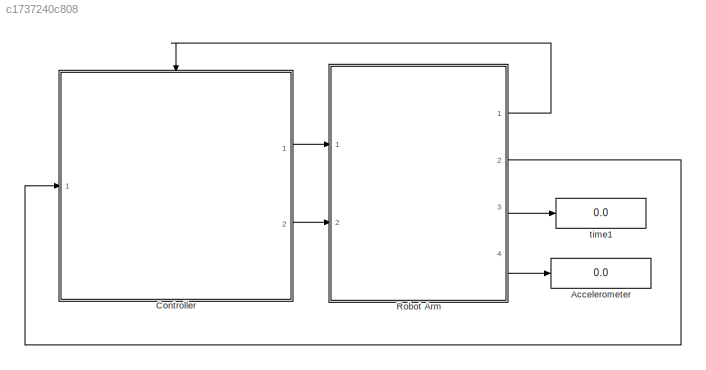
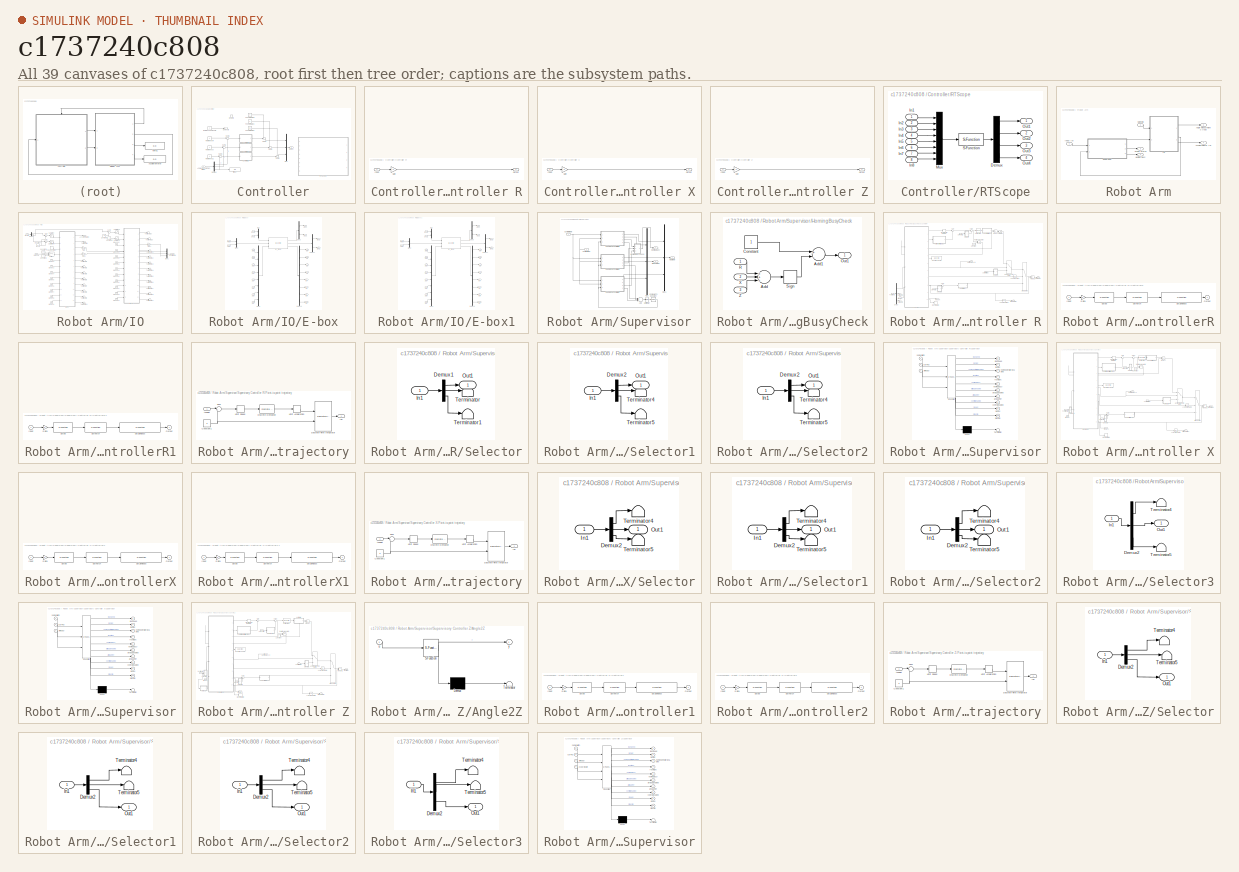
[diagram: thumbnail index - all 39 canvases of the model, root first then tree order]
MODEL slx_c1737240c808
KIND model
CONFIG AbsTol = auto
CONFIG FixedStep = 1/(1024*4)
CONFIG MaxStep = auto
CONFIG MinStep = auto
CONFIG RelTol = 1e-3
CONFIG SampleTimeConstraint = Unconstrained
CONFIG Solver = ode1
CONFIG SolverMode = Auto
CONFIG SolverName = ode1
CONFIG StartTime = 0.0
CONFIG StopTime = 1000
BLOCK [Display] Accelerometer
  Decimation = 50
  Ports = [1]
BLOCK [SubSystem] Controller
  Ports = [1, 2, 1]
  RequestExecContextInheritance = off
  Variant = off
BLOCK [Inport] Controller/Angle Measurements [rad]
  IconDisplay = Port number
BLOCK [SubSystem] Controller/Controller R
  Ports = [1, 1]
  RequestExecContextInheritance = off
  Variant = off
BLOCK [Gain] Controller/Controller R/Gain
  Gain = 0
  OutDataTypeStr = Inherit: Inherit via internal rule
  ParamDataTypeStr = Inherit: Inherit via internal rule
  SaturateOnIntegerOverflow = off
BLOCK [Inport] Controller/Controller R/Input
  IconDisplay = Port number
BLOCK [Outport] Controller/Controller R/Output
  IconDisplay = Port number
BLOCK [SubSystem] Controller/Controller X
  Ports = [1, 1]
  RequestExecContextInheritance = off
  Variant = off
BLOCK [Gain] Controller/Controller X/Gain
  Gain = 0
  OutDataTypeStr = Inherit: Inherit via internal rule
  ParamDataTypeStr = Inherit: Inherit via internal rule
  SaturateOnIntegerOverflow = off
BLOCK [Inport] Controller/Controller X/Input
  IconDisplay = Port number
BLOCK [Outport] Controller/Controller X/Output
  IconDisplay = Port number
BLOCK [SubSystem] Controller/Controller Z
  Ports = [1, 1]
  RequestExecContextInheritance = off
  Variant = off
BLOCK [Gain] Controller/Controller Z/Gain
  Gain = 0
  OutDataTypeStr = Inherit: Inherit via internal rule
  ParamDataTypeStr = Inherit: Inherit via internal rule
  SaturateOnIntegerOverflow = off
BLOCK [Inport] Controller/Controller Z/Input
  IconDisplay = Port number
BLOCK [Outport] Controller/Controller Z/Output
  IconDisplay = Port number
BLOCK [Demux] Controller/Demux
  DisplayOption = bar
  Outputs = 3
  Ports = [1, 3]
BLOCK [EnablePort] Controller/Enable
  Ports = []
BLOCK [Constant] Controller/Feedforward R
  Value = 0
BLOCK [Constant] Controller/Feedforward X
  Value = 0
BLOCK [Constant] Controller/Feedforward Z
  Value = 0.1
BLOCK [Mux] Controller/Mux
  DisplayOption = bar
  Inputs = 3
  Ports = [3, 1]
BLOCK [Outport] Controller/Output
  IconDisplay = Port number
BLOCK [SubSystem] Controller/RTScope
  OpenFcn = rtscope
  Ports = [8, 4]
  RequestExecContextInheritance = off
  Variant = off
BLOCK [Demux] Controller/RTScope/Demux
  Ports = [1, 4]
BLOCK [Inport] Controller/RTScope/In1
  IconDisplay = Port number
BLOCK [Inport] Controller/RTScope/In2
  IconDisplay = Port number
  Port = 2
BLOCK [Inport] Controller/RTScope/In3
  IconDisplay = Port number
  Port = 3
BLOCK [Inport] Controller/RTScope/In4
  IconDisplay = Port number
  Port = 4
BLOCK [Inport] Controller/RTScope/In5
  IconDisplay = Port number
  Port = 5
BLOCK [Inport] Controller/RTScope/In6
  IconDisplay = Port number
  Port = 6
BLOCK [Inport] Controller/RTScope/In7
  IconDisplay = Port number
  Port = 7
BLOCK [Inport] Controller/RTScope/In8
  IconDisplay = Port number
  Port = 8
BLOCK [Mux] Controller/RTScope/Mux
  DisplayOption = bar
  Inputs = 8
  Ports = [8, 1]
BLOCK [Outport] Controller/RTScope/Out1
  IconDisplay = Port number
BLOCK [Outport] Controller/RTScope/Out2
  IconDisplay = Port number
  Port = 2
BLOCK [Outport] Controller/RTScope/Out3
  IconDisplay = Port number
  Port = 3
BLOCK [Outport] Controller/RTScope/Out4
  IconDisplay = Port number
  Port = 4
BLOCK [S-Function] Controller/RTScope/S-Function
  EnableBusSupport = off
  FunctionName = sf_rt_scope
  Parameters = 4096
  Ports = [1, 1]
  SFunctionDeploymentMode = off
BLOCK [Constant] Controller/Reference R
  Value = 0
BLOCK [Constant] Controller/Reference Solenoid
  Value = 0
BLOCK [Constant] Controller/Reference X
  Value = 0
BLOCK [Constant] Controller/Reference Z
  Value = 0
BLOCK [Outport] Controller/Solenoid
  IconDisplay = Port number
  InitialOutput = 0
  Port = 2
BLOCK [Sum] Controller/Sum1
  IconShape = round
  InputSameDT = off
  Inputs = |+-
  OutDataTypeStr = Inherit: Inherit via internal rule
  Ports = [2, 1]
  SaturateOnIntegerOverflow = off
BLOCK [Sum] Controller/Sum2
  IconShape = round
  InputSameDT = off
  Inputs = |+-
  OutDataTypeStr = Inherit: Inherit via internal rule
  Ports = [2, 1]
  SaturateOnIntegerOverflow = off
BLOCK [Sum] Controller/Sum3
  IconShape = round
  InputSameDT = off
  Inputs = |+-
  OutDataTypeStr = Inherit: Inherit via internal rule
  Ports = [2, 1]
  SaturateOnIntegerOverflow = off
BLOCK [Sum] Controller/Sum4
  IconShape = round
  Inputs = ++|
  Ports = [2, 1]
BLOCK [Sum] Controller/Sum5
  IconShape = round
  Inputs = ++|
  Ports = [2, 1]
BLOCK [Sum] Controller/Sum6
  IconShape = round
  Inputs = ++|
  Ports = [2, 1]
BLOCK [Display] Controller/time2
  Decimation = 50
  Ports = [1]
BLOCK [SubSystem] Robot Arm
  Ports = [2, 4]
  RequestExecContextInheritance = off
  Variant = off
BLOCK [Outport] Robot Arm/Accelerometer [V]
  IconDisplay = Port number
  Port = 4
BLOCK [Outport] Robot Arm/Airbag Status
  IconDisplay = Port number
  Port = 3
BLOCK [Outport] Robot Arm/Angle measurments [rad]
  IconDisplay = Port number
  Port = 2
BLOCK [Outport] Robot Arm/Homing Busy
  IconDisplay = Port number
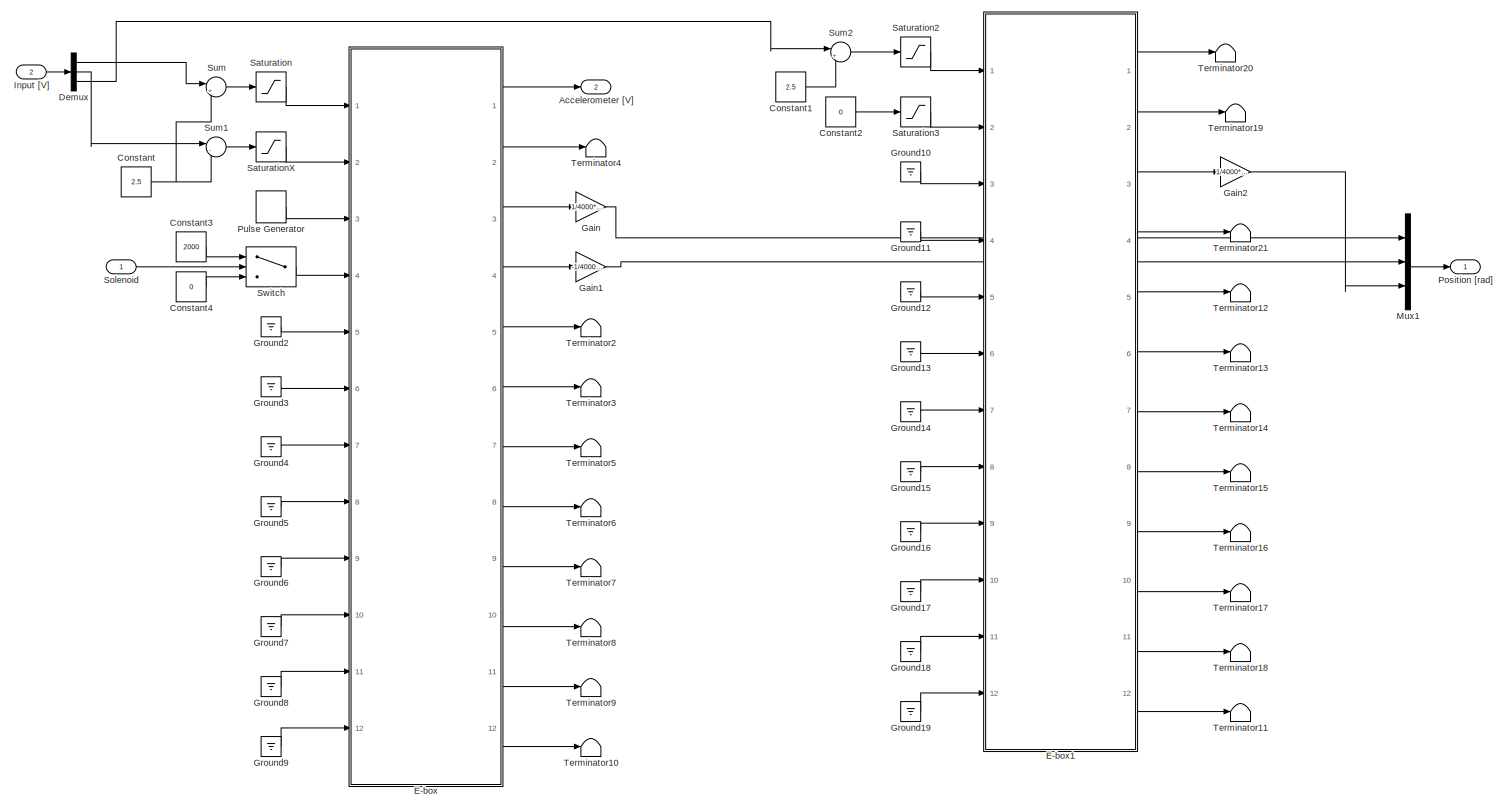
[diagram: Robot Arm/IO - part 1/1, most of the canvas]
BLOCK [SubSystem] Robot Arm/IO
  Ports = [2, 2]
  RequestExecContextInheritance = off
  Variant = off
BLOCK [Outport] Robot Arm/IO/Accelerometer [V]
  IconDisplay = Port number
  Port = 2
BLOCK [Constant] Robot Arm/IO/Constant
  Value = 2.5
BLOCK [Constant] Robot Arm/IO/Constant1
  Value = 2.5
BLOCK [Constant] Robot Arm/IO/Constant2
  Value = 0
BLOCK [Constant] Robot Arm/IO/Constant3
  Value = 2000
BLOCK [Constant] Robot Arm/IO/Constant4
  Value = 0
BLOCK [Demux] Robot Arm/IO/Demux
  DisplayOption = bar
  Outputs = 3
  Ports = [1, 3]
BLOCK [SubSystem] Robot Arm/IO/E-box
  Ports = [12, 12]
  RequestExecContextInheritance = off
  Variant = off
BLOCK [Outport] Robot Arm/IO/E-box/ADC0
  IconDisplay = Port number
BLOCK [Outport] Robot Arm/IO/E-box/ADC1
  IconDisplay = Port number
  Port = 2
BLOCK [Inport] Robot Arm/IO/E-box/DAC0
  IconDisplay = Port number
BLOCK [Inport] Robot Arm/IO/E-box/DAC1
  IconDisplay = Port number
  Port = 2
BLOCK [Outport] Robot Arm/IO/E-box/DI0
  IconDisplay = Port number
  Port = 5
BLOCK [Outport] Robot Arm/IO/E-box/DI1
  IconDisplay = Port number
  Port = 6
BLOCK [Outport] Robot Arm/IO/E-box/DI2
  IconDisplay = Port number
  Port = 7
BLOCK [Outport] Robot Arm/IO/E-box/DI3
  IconDisplay = Port number
  Port = 8
BLOCK [Outport] Robot Arm/IO/E-box/DI4
  IconDisplay = Port number
  Port = 9
BLOCK [Outport] Robot Arm/IO/E-box/DI5
  IconDisplay = Port number
  Port = 10
BLOCK [Outport] Robot Arm/IO/E-box/DI6
  IconDisplay = Port number
  Port = 11
BLOCK [Outport] Robot Arm/IO/E-box/DI7
  IconDisplay = Port number
  Port = 12
BLOCK [Inport] Robot Arm/IO/E-box/DO0
  IconDisplay = Port number
  Port = 5
BLOCK [Inport] Robot Arm/IO/E-box/DO1
  IconDisplay = Port number
  Port = 6
BLOCK [Inport] Robot Arm/IO/E-box/DO2
  IconDisplay = Port number
  Port = 7
BLOCK [Inport] Robot Arm/IO/E-box/DO3
  IconDisplay = Port number
  Port = 8
BLOCK [Inport] Robot Arm/IO/E-box/DO4
  IconDisplay = Port number
  Port = 9
BLOCK [Inport] Robot Arm/IO/E-box/DO5
  IconDisplay = Port number
  Port = 10
BLOCK [Inport] Robot Arm/IO/E-box/DO6
  IconDisplay = Port number
  Port = 11
BLOCK [Inport] Robot Arm/IO/E-box/DO7
  IconDisplay = Port number
  Port = 12
BLOCK [Demux] Robot Arm/IO/E-box/Demux
  DisplayOption = bar
  Outputs = 2
  Ports = [1, 2]
BLOCK [Demux] Robot Arm/IO/E-box/Demux1
  DisplayOption = bar
  Outputs = 2
  Ports = [1, 2]
BLOCK [Demux] Robot Arm/IO/E-box/Demux2
  DisplayOption = bar
  Outputs = 8
  Ports = [1, 8]
BLOCK [Outport] Robot Arm/IO/E-box/ENC0
  IconDisplay = Port number
  Port = 3
BLOCK [Outport] Robot Arm/IO/E-box/ENC1
  IconDisplay = Port number
  Port = 4
BLOCK [Mux] Robot Arm/IO/E-box/Mux
  DisplayOption = bar
  Inputs = 2
  Ports = [2, 1]
BLOCK [Mux] Robot Arm/IO/E-box/Mux1
  DisplayOption = bar
  Inputs = 8
  Ports = [8, 1]
BLOCK [Mux] Robot Arm/IO/E-box/Mux2
  DisplayOption = bar
  Inputs = 2
  Ports = [2, 1]
BLOCK [Inport] Robot Arm/IO/E-box/PWM0
  IconDisplay = Port number
  Port = 3
BLOCK [Inport] Robot Arm/IO/E-box/PWM1
  IconDisplay = Port number
  Port = 4
BLOCK [S-Function] Robot Arm/IO/E-box/ec_Ebox
  EnableBusSupport = off
  FunctionName = ec_Ebox
  Parameters = link_id
  Ports = [3, 3]
  SFunctionDeploymentMode = off
BLOCK [SubSystem] Robot Arm/IO/E-box1
  Ports = [12, 12]
  RequestExecContextInheritance = off
  Variant = off
BLOCK [Outport] Robot Arm/IO/E-box1/ADC0
  IconDisplay = Port number
BLOCK [Outport] Robot Arm/IO/E-box1/ADC1
  IconDisplay = Port number
  Port = 2
BLOCK [Inport] Robot Arm/IO/E-box1/DAC0
  IconDisplay = Port number
BLOCK [Inport] Robot Arm/IO/E-box1/DAC1
  IconDisplay = Port number
  Port = 2
BLOCK [Outport] Robot Arm/IO/E-box1/DI0
  IconDisplay = Port number
  Port = 5
BLOCK [Outport] Robot Arm/IO/E-box1/DI1
  IconDisplay = Port number
  Port = 6
BLOCK [Outport] Robot Arm/IO/E-box1/DI2
  IconDisplay = Port number
  Port = 7
BLOCK [Outport] Robot Arm/IO/E-box1/DI3
  IconDisplay = Port number
  Port = 8
BLOCK [Outport] Robot Arm/IO/E-box1/DI4
  IconDisplay = Port number
  Port = 9
BLOCK [Outport] Robot Arm/IO/E-box1/DI5
  IconDisplay = Port number
  Port = 10
BLOCK [Outport] Robot Arm/IO/E-box1/DI6
  IconDisplay = Port number
  Port = 11
BLOCK [Outport] Robot Arm/IO/E-box1/DI7
  IconDisplay = Port number
  Port = 12
BLOCK [Inport] Robot Arm/IO/E-box1/DO0
  IconDisplay = Port number
  Port = 5
BLOCK [Inport] Robot Arm/IO/E-box1/DO1
  IconDisplay = Port number
  Port = 6
BLOCK [Inport] Robot Arm/IO/E-box1/DO2
  IconDisplay = Port number
  Port = 7
BLOCK [Inport] Robot Arm/IO/E-box1/DO3
  IconDisplay = Port number
  Port = 8
BLOCK [Inport] Robot Arm/IO/E-box1/DO4
  IconDisplay = Port number
  Port = 9
BLOCK [Inport] Robot Arm/IO/E-box1/DO5
  IconDisplay = Port number
  Port = 10
BLOCK [Inport] Robot Arm/IO/E-box1/DO6
  IconDisplay = Port number
  Port = 11
BLOCK [Inport] Robot Arm/IO/E-box1/DO7
  IconDisplay = Port number
  Port = 12
BLOCK [Demux] Robot Arm/IO/E-box1/Demux
  DisplayOption = bar
  Outputs = 2
  Ports = [1, 2]
BLOCK [Demux] Robot Arm/IO/E-box1/Demux1
  DisplayOption = bar
  Outputs = 2
  Ports = [1, 2]
BLOCK [Demux] Robot Arm/IO/E-box1/Demux2
  DisplayOption = bar
  Outputs = 8
  Ports = [1, 8]
BLOCK [Outport] Robot Arm/IO/E-box1/ENC0
  IconDisplay = Port number
  Port = 3
BLOCK [Outport] Robot Arm/IO/E-box1/ENC1
  IconDisplay = Port number
  Port = 4
BLOCK [Mux] Robot Arm/IO/E-box1/Mux
  DisplayOption = bar
  Inputs = 2
  Ports = [2, 1]
BLOCK [Mux] Robot Arm/IO/E-box1/Mux1
  DisplayOption = bar
  Inputs = 8
  Ports = [8, 1]
BLOCK [Mux] Robot Arm/IO/E-box1/Mux2
  DisplayOption = bar
  Inputs = 2
  Ports = [2, 1]
BLOCK [Inport] Robot Arm/IO/E-box1/PWM0
  IconDisplay = Port number
  Port = 3
BLOCK [Inport] Robot Arm/IO/E-box1/PWM1
  IconDisplay = Port number
  Port = 4
BLOCK [S-Function] Robot Arm/IO/E-box1/ec_Ebox
  EnableBusSupport = off
  FunctionName = ec_Ebox
  Parameters = link_id
  Ports = [3, 3]
  SFunctionDeploymentMode = off
BLOCK [Gain] Robot Arm/IO/Gain
  Gain = 1/4000*9/150*2*pi
  OutDataTypeStr = Inherit: Inherit via internal rule
  ParamDataTypeStr = Inherit: Inherit via internal rule
  SaturateOnIntegerOverflow = off
BLOCK [Gain] Robot Arm/IO/Gain1
  Gain = -1/4000*9/100*2*pi
  OutDataTypeStr = Inherit: Inherit via internal rule
  ParamDataTypeStr = Inherit: Inherit via internal rule
  SaturateOnIntegerOverflow = off
BLOCK [Gain] Robot Arm/IO/Gain2
  Gain = 1/4000*9/100*2*pi
  OutDataTypeStr = Inherit: Inherit via internal rule
  ParamDataTypeStr = Inherit: Inherit via internal rule
  SaturateOnIntegerOverflow = off
BLOCK [Ground] Robot Arm/IO/Ground10
BLOCK [Ground] Robot Arm/IO/Ground11
BLOCK [Ground] Robot Arm/IO/Ground12
BLOCK [Ground] Robot Arm/IO/Ground13
BLOCK [Ground] Robot Arm/IO/Ground14
BLOCK [Ground] Robot Arm/IO/Ground15
BLOCK [Ground] Robot Arm/IO/Ground16
BLOCK [Ground] Robot Arm/IO/Ground17
BLOCK [Ground] Robot Arm/IO/Ground18
BLOCK [Ground] Robot Arm/IO/Ground19
BLOCK [Ground] Robot Arm/IO/Ground2
BLOCK [Ground] Robot Arm/IO/Ground3
BLOCK [Ground] Robot Arm/IO/Ground4
BLOCK [Ground] Robot Arm/IO/Ground5
BLOCK [Ground] Robot Arm/IO/Ground6
BLOCK [Ground] Robot Arm/IO/Ground7
BLOCK [Ground] Robot Arm/IO/Ground8
BLOCK [Ground] Robot Arm/IO/Ground9
BLOCK [Inport] Robot Arm/IO/Input [V]
  IconDisplay = Port number
  Port = 2
BLOCK [Mux] Robot Arm/IO/Mux1
  DisplayOption = bar
  Inputs = 3
  Ports = [3, 1]
BLOCK [Outport] Robot Arm/IO/Position [rad]
  IconDisplay = Port number
BLOCK [DiscretePulseGenerator] Robot Arm/IO/Pulse Generator
  Amplitude = 2000
  Period = 1/1024
  Ports = [0, 1]
  PulseType = Time based
  PulseWidth = 50
BLOCK [Saturate] Robot Arm/IO/Saturation
  InputPortMap = u0
  LowerLimit = 0
  Ports = [1, 1]
  UpperLimit = 5
BLOCK [Saturate] Robot Arm/IO/Saturation2
  InputPortMap = u0
  LowerLimit = 0
  Ports = [1, 1]
  UpperLimit = 5
BLOCK [Saturate] Robot Arm/IO/Saturation3
  InputPortMap = u0
  LowerLimit = 0
  Ports = [1, 1]
  UpperLimit = 5
BLOCK [Saturate] Robot Arm/IO/SaturationX
  InputPortMap = u0
  LowerLimit = 0
  Ports = [1, 1]
  UpperLimit = 5
BLOCK [Inport] Robot Arm/IO/Solenoid
  IconDisplay = Port number
BLOCK [Sum] Robot Arm/IO/Sum
  IconShape = round
  InputSameDT = off
  Inputs = |++
  OutDataTypeStr = Inherit: Inherit via internal rule
  Ports = [2, 1]
  SaturateOnIntegerOverflow = off
BLOCK [Sum] Robot Arm/IO/Sum1
  IconShape = round
  InputSameDT = off
  Inputs = |-+
  OutDataTypeStr = Inherit: Inherit via internal rule
  Ports = [2, 1]
  SaturateOnIntegerOverflow = off
BLOCK [Sum] Robot Arm/IO/Sum2
  IconShape = round
  InputSameDT = off
  Inputs = |++
  OutDataTypeStr = Inherit: Inherit via internal rule
  Ports = [2, 1]
  SaturateOnIntegerOverflow = off
BLOCK [Switch] Robot Arm/IO/Switch
  InputSameDT = off
  SaturateOnIntegerOverflow = off
  Threshold = .5
BLOCK [Terminator] Robot Arm/IO/Terminator10
BLOCK [Terminator] Robot Arm/IO/Terminator11
BLOCK [Terminator] Robot Arm/IO/Terminator12
BLOCK [Terminator] Robot Arm/IO/Terminator13
BLOCK [Terminator] Robot Arm/IO/Terminator14
BLOCK [Terminator] Robot Arm/IO/Terminator15
BLOCK [Terminator] Robot Arm/IO/Terminator16
BLOCK [Terminator] Robot Arm/IO/Terminator17
BLOCK [Terminator] Robot Arm/IO/Terminator18
BLOCK [Terminator] Robot Arm/IO/Terminator19
BLOCK [Terminator] Robot Arm/IO/Terminator2
BLOCK [Terminator] Robot Arm/IO/Terminator20
BLOCK [Terminator] Robot Arm/IO/Terminator21
BLOCK [Terminator] Robot Arm/IO/Terminator3
BLOCK [Terminator] Robot Arm/IO/Terminator4
BLOCK [Terminator] Robot Arm/IO/Terminator5
BLOCK [Terminator] Robot Arm/IO/Terminator6
BLOCK [Terminator] Robot Arm/IO/Terminator7
BLOCK [Terminator] Robot Arm/IO/Terminator8
BLOCK [Terminator] Robot Arm/IO/Terminator9
BLOCK [Inport] Robot Arm/Input [V]
  IconDisplay = Port number
BLOCK [Inport] Robot Arm/Solenoid
  IconDisplay = Port number
  Port = 2
BLOCK [SubSystem] Robot Arm/Supervisor
  Ports = [2, 3]
  RequestExecContextInheritance = off
  Variant = off
BLOCK [Sum] Robot Arm/Supervisor/Add
  InputSameDT = off
  Inputs = +++
  OutDataTypeStr = Inherit: Inherit via internal rule
  Ports = [3, 1]
  SaturateOnIntegerOverflow = off
BLOCK [Outport] Robot Arm/Supervisor/Airbag Status
  IconDisplay = Port number
  Port = 2
BLOCK [Reference] Robot Arm/Supervisor/Compare To Constant  REF=simulink/Logic and Bit
Operations/Compare
To Constant
  Ports = [1, 1]
  SourceBlock = simulink/Logic and Bit\nOperations/Compare\nTo Constant
  SourceType = Compare To Constant
BLOCK [Inport] Robot Arm/Supervisor/Controller [Nm]
  IconDisplay = Port number
BLOCK [Outport] Robot Arm/Supervisor/HomingBusy
  IconDisplay = Port number
  Port = 3
BLOCK [SubSystem] Robot Arm/Supervisor/HomingBusyCheck
  Ports = [3, 1]
  RequestExecContextInheritance = off
  Variant = off
BLOCK [Sum] Robot Arm/Supervisor/HomingBusyCheck/Add
  InputSameDT = off
  Inputs = +++
  OutDataTypeStr = Inherit: Inherit via internal rule
  Ports = [3, 1]
  SaturateOnIntegerOverflow = off
BLOCK [Sum] Robot Arm/Supervisor/HomingBusyCheck/Add1
  InputSameDT = off
  Inputs = +-
  OutDataTypeStr = Inherit: Inherit via internal rule
  Ports = [2, 1]
  SaturateOnIntegerOverflow = off
BLOCK [Constant] Robot Arm/Supervisor/HomingBusyCheck/Constant
BLOCK [Outport] Robot Arm/Supervisor/HomingBusyCheck/Out1
  IconDisplay = Port number
BLOCK [Inport] Robot Arm/Supervisor/HomingBusyCheck/R
  IconDisplay = Port number
BLOCK [Signum] Robot Arm/Supervisor/HomingBusyCheck/Sign
BLOCK [Inport] Robot Arm/Supervisor/HomingBusyCheck/X
  IconDisplay = Port number
  Port = 2
BLOCK [Inport] Robot Arm/Supervisor/HomingBusyCheck/Z
  IconDisplay = Port number
  Port = 3
BLOCK [Outport] Robot Arm/Supervisor/Motor [Nm]
  IconDisplay = Port number
BLOCK [Mux] Robot Arm/Supervisor/Mux
  DisplayOption = bar
  Inputs = 3
  Ports = [3, 1]
BLOCK [Mux] Robot Arm/Supervisor/Mux1
  DisplayOption = bar
  Inputs = 3
  Ports = [3, 1]
BLOCK [Inport] Robot Arm/Supervisor/Position [rad]
  IconDisplay = Port number
  Port = 2
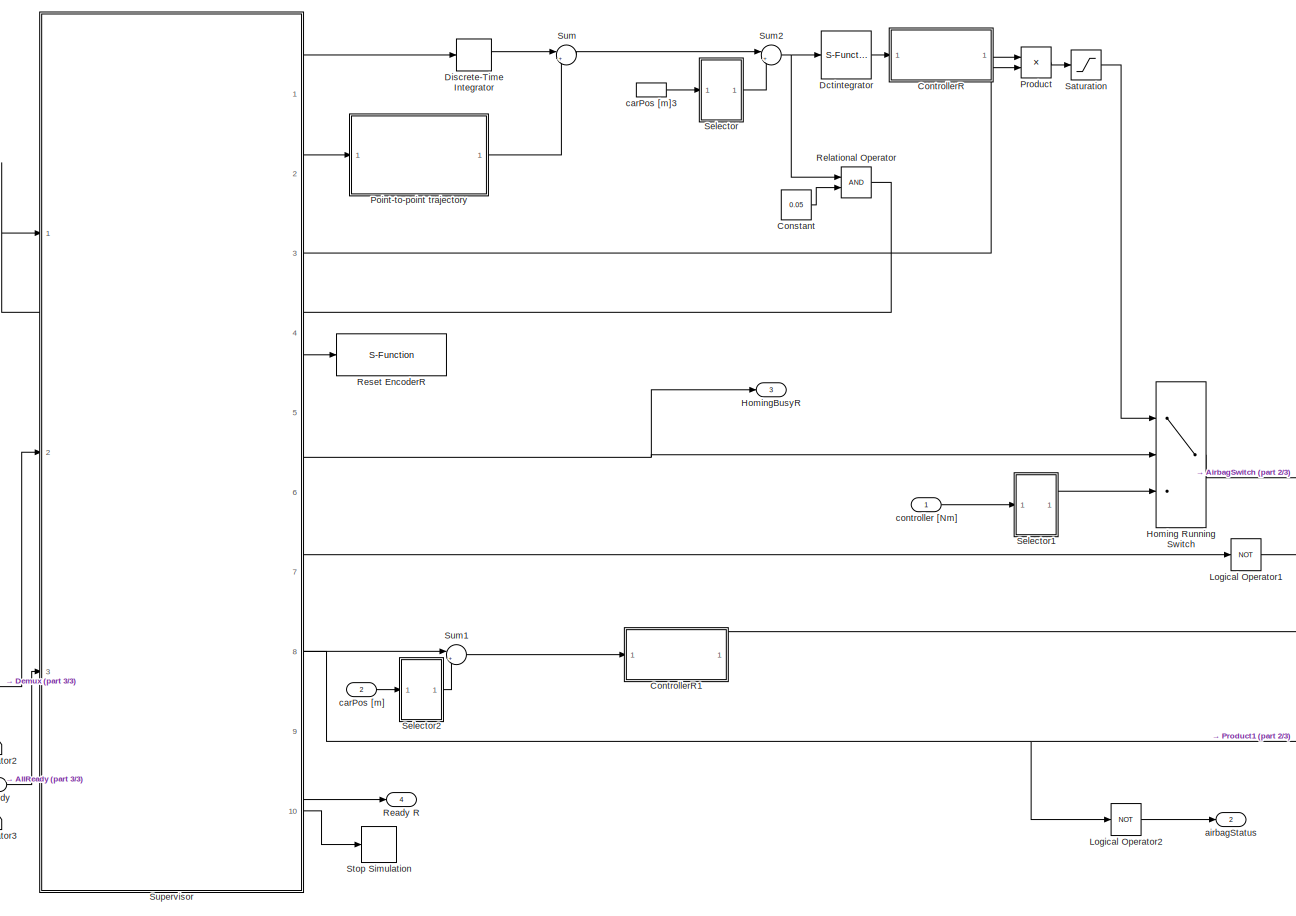
[diagram: Robot Arm/Supervisor/Supervisory Controller R - part 1/3, most of the canvas]
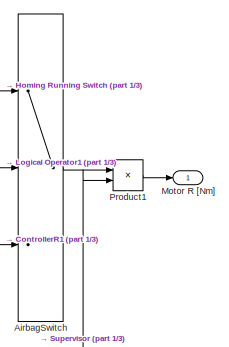
[diagram: Robot Arm/Supervisor/Supervisory Controller R - part 2/3, middle right region]
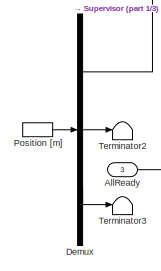
[diagram: Robot Arm/Supervisor/Supervisory Controller R - part 3/3, bottom left region]
BLOCK [SubSystem] Robot Arm/Supervisor/Supervisory Controller R
  Ports = [3, 4]
  RequestExecContextInheritance = off
  Variant = off
BLOCK [Switch] Robot Arm/Supervisor/Supervisory Controller R/AirbagSwitch
  InputSameDT = off
  SaturateOnIntegerOverflow = off
  Threshold = 0.5
BLOCK [Inport] Robot Arm/Supervisor/Supervisory Controller R/AllReady
  IconDisplay = Port number
  Port = 3
BLOCK [Constant] Robot Arm/Supervisor/Supervisory Controller R/Constant
  Value = 0.05
BLOCK [SubSystem] Robot Arm/Supervisor/Supervisory Controller R/ControllerR
  Ports = [1, 1]
  RequestExecContextInheritance = off
  Variant = off
BLOCK [S-Function] Robot Arm/Supervisor/Supervisory Controller R/ControllerR/Dct2lowpass
  EnableBusSupport = off
  FunctionName = dlowpass2
  Parameters = [f_den b_den 0.001]
  Ports = [1, 1]
  SFunctionDeploymentMode = off
BLOCK [S-Function] Robot Arm/Supervisor/Supervisory Controller R/ControllerR/Dctnotch
  EnableBusSupport = off
  FunctionName = dnotch
  Parameters = [f_num b_num f_den b_den 0.001]
  Ports = [1, 1]
  SFunctionDeploymentMode = off
BLOCK [S-Function] Robot Arm/Supervisor/Supervisory Controller R/ControllerR/Dctpd
  EnableBusSupport = off
  FunctionName = dpd
  Parameters = [kp kv 0.001]
  Ports = [1, 1]
  SFunctionDeploymentMode = off
BLOCK [Gain] Robot Arm/Supervisor/Supervisory Controller R/ControllerR/Gain1
BLOCK [Inport] Robot Arm/Supervisor/Supervisory Controller R/ControllerR/Input
  IconDisplay = Port number
BLOCK [Outport] Robot Arm/Supervisor/Supervisory Controller R/ControllerR/Output
  IconDisplay = Port number
BLOCK [SubSystem] Robot Arm/Supervisor/Supervisory Controller R/ControllerR1
  Ports = [1, 1]
  RequestExecContextInheritance = off
  Variant = off
BLOCK [S-Function] Robot Arm/Supervisor/Supervisory Controller R/ControllerR1/Dct2lowpass
  EnableBusSupport = off
  FunctionName = dlowpass2
  Parameters = [f_den b_den 0.001]
  Ports = [1, 1]
  SFunctionDeploymentMode = off
BLOCK [S-Function] Robot Arm/Supervisor/Supervisory Controller R/ControllerR1/Dctnotch
  EnableBusSupport = off
  FunctionName = dnotch
  Parameters = [f_num b_num f_den b_den 0.001]
  Ports = [1, 1]
  SFunctionDeploymentMode = off
BLOCK [S-Function] Robot Arm/Supervisor/Supervisory Controller R/ControllerR1/Dctpd
  EnableBusSupport = off
  FunctionName = dpd
  Parameters = [kp kv 0.001]
  Ports = [1, 1]
  SFunctionDeploymentMode = off
BLOCK [Gain] Robot Arm/Supervisor/Supervisory Controller R/ControllerR1/Gain1
BLOCK [Inport] Robot Arm/Supervisor/Supervisory Controller R/ControllerR1/Input
  IconDisplay = Port number
BLOCK [Outport] Robot Arm/Supervisor/Supervisory Controller R/ControllerR1/Output
  IconDisplay = Port number
BLOCK [S-Function] Robot Arm/Supervisor/Supervisory Controller R/Dctintegrator
  EnableBusSupport = off
  FunctionName = dweakint
  Parameters = [f_num 0.001]
  Ports = [1, 1]
  SFunctionDeploymentMode = off
BLOCK [Demux] Robot Arm/Supervisor/Supervisory Controller R/Demux
  DisplayOption = bar
  Outputs = 3
  Ports = [1, 3]
BLOCK [DiscreteIntegrator] Robot Arm/Supervisor/Supervisory Controller R/Discrete-Time Integrator
  ICPrevOutput = DiscIntNeverNeededParam
  ICPrevScaledInput = DiscIntNeverNeededParam
  Ports = [1, 1]
  SampleTime = -1
BLOCK [Switch] Robot Arm/Supervisor/Supervisory Controller R/Homing Running Switch
  InputSameDT = off
  SaturateOnIntegerOverflow = off
  Threshold = 0.5
BLOCK [Outport] Robot Arm/Supervisor/Supervisory Controller R/HomingBusyR
  IconDisplay = Port number
  Port = 3
BLOCK [Logic] Robot Arm/Supervisor/Supervisory Controller R/Logical Operator1
  AllPortsSameDT = off
  Operator = NOT
  OutDataTypeStr = boolean
  Ports = [1, 1]
BLOCK [Logic] Robot Arm/Supervisor/Supervisory Controller R/Logical Operator2
  AllPortsSameDT = off
  Operator = NOT
  OutDataTypeStr = boolean
  Ports = [1, 1]
BLOCK [Outport] Robot Arm/Supervisor/Supervisory Controller R/Motor R [Nm]
  IconDisplay = Port number
BLOCK [SubSystem] Robot Arm/Supervisor/Supervisory Controller R/Point-to-point trajectory
  Ports = [1, 1]
  RequestExecContextInheritance = off
  Variant = off
BLOCK [Constant] Robot Arm/Supervisor/Supervisory Controller R/Point-to-point trajectory/Constant1
  Value = 0
BLOCK [Reference] Robot Arm/Supervisor/Supervisory Controller R/Point-to-point trajectory/Discrete Derivative  REF=simulink/Discrete/Discrete Derivative
  Ports = [1, 1]
  SourceBlock = simulink/Discrete/Discrete Derivative
  SourceType = Discrete Derivative
BLOCK [DiscreteIntegrator] Robot Arm/Supervisor/Supervisory Controller R/Point-to-point trajectory/Discrete-Time Integrator
  ICPrevOutput = DiscIntNeverNeededParam
  ICPrevScaledInput = DiscIntNeverNeededParam
  InitialConditionSource = external
  Ports = [2, 1]
  SampleTime = -1
BLOCK [RateLimiter] Robot Arm/Supervisor/Supervisory Controller R/Point-to-point trajectory/Limit Acceleration
  FallingSlewLimit = -0.5
  RisingSlewLimit = 0.5
  SampleTimeMode = inherited
BLOCK [RateLimiter] Robot Arm/Supervisor/Supervisory Controller R/Point-to-point trajectory/Limit Speed
  FallingSlewLimit = -0.4
  RisingSlewLimit = 0.4
  SampleTimeMode = inherited
BLOCK [Sum] Robot Arm/Supervisor/Supervisory Controller R/Point-to-point trajectory/Sum
  IconShape = round
  InputSameDT = off
  Inputs = |++
  OutDataTypeStr = Inherit: Inherit via internal rule
  Ports = [2, 1]
  SaturateOnIntegerOverflow = off
BLOCK [Outport] Robot Arm/Supervisor/Supervisory Controller R/Point-to-point trajectory/ref
  IconDisplay = Port number
BLOCK [Inport] Robot Arm/Supervisor/Supervisory Controller R/Point-to-point trajectory/toPoint
  IconDisplay = Port number
BLOCK [InportShadow] Robot Arm/Supervisor/Supervisory Controller R/Position [m]
  IconDisplay = Port number
  Port = 2
BLOCK [Product] Robot Arm/Supervisor/Supervisory Controller R/Product
  InputSameDT = off
  OutDataTypeStr = Inherit: Inherit via internal rule
  Ports = [2, 1]
  SaturateOnIntegerOverflow = off
BLOCK [Product] Robot Arm/Supervisor/Supervisory Controller R/Product1
  InputSameDT = off
  OutDataTypeStr = Inherit: Inherit via internal rule
  Ports = [2, 1]
  SaturateOnIntegerOverflow = off
BLOCK [Outport] Robot Arm/Supervisor/Supervisory Controller R/Ready R
  IconDisplay = Port number
  Port = 4
BLOCK [RelationalOperator] Robot Arm/Supervisor/Supervisory Controller R/Relational Operator
  InputSameDT = off
  OutDataTypeStr = boolean
  Ports = [2, 1]
BLOCK [S-Function] Robot Arm/Supervisor/Supervisory Controller R/Reset EncoderR
  EnableBusSupport = off
  FunctionName = ec_EboxResetEnc
  Parameters = link_id, chan_id
  Ports = [1]
  SFunctionDeploymentMode = off
BLOCK [Saturate] Robot Arm/Supervisor/Supervisory Controller R/Saturation
  InputPortMap = u0
  LowerLimit = -0.7
  Ports = [1, 1]
  UpperLimit = 0.7
BLOCK [SubSystem] Robot Arm/Supervisor/Supervisory Controller R/Selector
  Ports = [1, 1]
  RequestExecContextInheritance = off
  Variant = off
BLOCK [Demux] Robot Arm/Supervisor/Supervisory Controller R/Selector/Demux1
  DisplayOption = bar
  Outputs = 3
  Ports = [1, 3]
BLOCK [Inport] Robot Arm/Supervisor/Supervisory Controller R/Selector/In1
  IconDisplay = Port number
BLOCK [Outport] Robot Arm/Supervisor/Supervisory Controller R/Selector/Out1
  IconDisplay = Port number
BLOCK [Terminator] Robot Arm/Supervisor/Supervisory Controller R/Selector/Terminator
BLOCK [Terminator] Robot Arm/Supervisor/Supervisory Controller R/Selector/Terminator1
BLOCK [SubSystem] Robot Arm/Supervisor/Supervisory Controller R/Selector1
  Ports = [1, 1]
  RequestExecContextInheritance = off
  Variant = off
BLOCK [Demux] Robot Arm/Supervisor/Supervisory Controller R/Selector1/Demux2
  DisplayOption = bar
  Outputs = 3
  Ports = [1, 3]
BLOCK [Inport] Robot Arm/Supervisor/Supervisory Controller R/Selector1/In1
  IconDisplay = Port number
BLOCK [Outport] Robot Arm/Supervisor/Supervisory Controller R/Selector1/Out1
  IconDisplay = Port number
BLOCK [Terminator] Robot Arm/Supervisor/Supervisory Controller R/Selector1/Terminator4
BLOCK [Terminator] Robot Arm/Supervisor/Supervisory Controller R/Selector1/Terminator5
BLOCK [SubSystem] Robot Arm/Supervisor/Supervisory Controller R/Selector2
  Ports = [1, 1]
  RequestExecContextInheritance = off
  Variant = off
BLOCK [Demux] Robot Arm/Supervisor/Supervisory Controller R/Selector2/Demux2
  DisplayOption = bar
  Outputs = 3
  Ports = [1, 3]
BLOCK [Inport] Robot Arm/Supervisor/Supervisory Controller R/Selector2/In1
  IconDisplay = Port number
BLOCK [Outport] Robot Arm/Supervisor/Supervisory Controller R/Selector2/Out1
  IconDisplay = Port number
BLOCK [Terminator] Robot Arm/Supervisor/Supervisory Controller R/Selector2/Terminator4
BLOCK [Terminator] Robot Arm/Supervisor/Supervisory Controller R/Selector2/Terminator5
BLOCK [Stop] Robot Arm/Supervisor/Supervisory Controller R/Stop Simulation
BLOCK [Sum] Robot Arm/Supervisor/Supervisory Controller R/Sum
  IconShape = round
  InputSameDT = off
  Inputs = |++
  OutDataTypeStr = Inherit: Inherit via internal rule
  Ports = [2, 1]
  SaturateOnIntegerOverflow = off
BLOCK [Sum] Robot Arm/Supervisor/Supervisory Controller R/Sum1
  IconShape = round
  InputSameDT = off
  Inputs = |+-
  OutDataTypeStr = Inherit: Inherit via internal rule
  Ports = [2, 1]
  SaturateOnIntegerOverflow = off
BLOCK [Sum] Robot Arm/Supervisor/Supervisory Controller R/Sum2
  IconShape = round
  InputSameDT = off
  Inputs = |+-
  OutDataTypeStr = Inherit: Inherit via internal rule
  Ports = [2, 1]
  SaturateOnIntegerOverflow = off
BLOCK [SubSystem] Robot Arm/Supervisor/Supervisory Controller R/Supervisor
  ErrorFcn = Stateflow.Translate.translate
  PermitHierarchicalResolution = ExplicitOnly
  Ports = [3, 10]
  RequestExecContextInheritance = off
  SFBlockType = Chart
  TreatAsAtomicUnit = on
  Variant = off
BLOCK [Demux] Robot Arm/Supervisor/Supervisory Controller R/Supervisor/ Demux 
  Outputs = 1
  Ports = [1, 1]
BLOCK [S-Function] Robot Arm/Supervisor/Supervisory Controller R/Supervisor/ SFunction 
  EnableBusSupport = on
  FunctionName = sf_sfun
  PortCounts = [3 11]
  Ports = [3, 11]
  SFunctionDeploymentMode = off
  Tag = Stateflow S-Function RA3 5
BLOCK [Terminator] Robot Arm/Supervisor/Supervisory Controller R/Supervisor/ Terminator 
BLOCK [Inport] Robot Arm/Supervisor/Supervisory Controller R/Supervisor/AllReady
  IconDisplay = Port number
  Port = 3
BLOCK [Outport] Robot Arm/Supervisor/Supervisory Controller R/Supervisor/Ready
  IconDisplay = Port number
  Port = 9
BLOCK [Outport] Robot Arm/Supervisor/Supervisory Controller R/Supervisor/StopSim
  IconDisplay = Port number
  Port = 10
BLOCK [Outport] Robot Arm/Supervisor/Supervisory Controller R/Supervisor/airBagEnabled
  IconDisplay = Port number
  Port = 6
BLOCK [Outport] Robot Arm/Supervisor/Supervisory Controller R/Supervisor/airBagRef
  IconDisplay = Port number
  Port = 7
BLOCK [Inport] Robot Arm/Supervisor/Supervisory Controller R/Supervisor/carPos
  IconDisplay = Port number
  Port = 2
BLOCK [Outport] Robot Arm/Supervisor/Supervisory Controller R/Supervisor/controlEnabled
  IconDisplay = Port number
  Port = 8
BLOCK [Outport] Robot Arm/Supervisor/Supervisory Controller R/Supervisor/homeControllerEnabled
  IconDisplay = Port number
  Port = 3
BLOCK [Inport] Robot Arm/Supervisor/Supervisory Controller R/Supervisor/homeSwitch
  IconDisplay = Port number
BLOCK [Outport] Robot Arm/Supervisor/Supervisory Controller R/Supervisor/homingBusy
  IconDisplay = Port number
  Port = 5
BLOCK [Outport] Robot Arm/Supervisor/Supervisory Controller R/Supervisor/jogSpeed
  IconDisplay = Port number
BLOCK [Outport] Robot Arm/Supervisor/Supervisory Controller R/Supervisor/resetEnc
  IconDisplay = Port number
  Port = 4
BLOCK [Outport] Robot Arm/Supervisor/Supervisory Controller R/Supervisor/toPoint
  IconDisplay = Port number
  Port = 2
BLOCK [Terminator] Robot Arm/Supervisor/Supervisory Controller R/Terminator2
BLOCK [Terminator] Robot Arm/Supervisor/Supervisory Controller R/Terminator3
BLOCK [Outport] Robot Arm/Supervisor/Supervisory Controller R/airbagStatus
  IconDisplay = Port number
  Port = 2
BLOCK [Inport] Robot Arm/Supervisor/Supervisory Controller R/carPos [m]
  IconDisplay = Port number
  Port = 2
BLOCK [InportShadow] Robot Arm/Supervisor/Supervisory Controller R/carPos [m]3
  IconDisplay = Port number
  Port = 2
BLOCK [Inport] Robot Arm/Supervisor/Supervisory Controller R/controller [Nm]
  IconDisplay = Port number
BLOCK [SubSystem] Robot Arm/Supervisor/Supervisory Controller X
  Ports = [3, 4]
  RequestExecContextInheritance = off
  Variant = off
BLOCK [Switch] Robot Arm/Supervisor/Supervisory Controller X/AirbagSwitch
  InputSameDT = off
  SaturateOnIntegerOverflow = off
  Threshold = 0.5
BLOCK [Inport] Robot Arm/Supervisor/Supervisory Controller X/AllReady
  IconDisplay = Port number
  Port = 3
BLOCK [Constant] Robot Arm/Supervisor/Supervisory Controller X/Constant
  Value = -0.1
BLOCK [SubSystem] Robot Arm/Supervisor/Supervisory Controller X/ControllerX
  Ports = [1, 1]
  RequestExecContextInheritance = off
  Variant = off
BLOCK [S-Function] Robot Arm/Supervisor/Supervisory Controller X/ControllerX/Dct2lowpass
  EnableBusSupport = off
  FunctionName = dlowpass2
  Parameters = [f_den b_den 0.001]
  Ports = [1, 1]
  SFunctionDeploymentMode = off
BLOCK [S-Function] Robot Arm/Supervisor/Supervisory Controller X/ControllerX/Dctnotch
  EnableBusSupport = off
  FunctionName = dnotch
  Parameters = [f_num b_num f_den b_den 0.001]
  Ports = [1, 1]
  SFunctionDeploymentMode = off
BLOCK [S-Function] Robot Arm/Supervisor/Supervisory Controller X/ControllerX/Dctpd
  EnableBusSupport = off
  FunctionName = dpd
  Parameters = [kp kv 0.001]
  Ports = [1, 1]
  SFunctionDeploymentMode = off
BLOCK [Gain] Robot Arm/Supervisor/Supervisory Controller X/ControllerX/Gain1
BLOCK [Inport] Robot Arm/Supervisor/Supervisory Controller X/ControllerX/Input
  IconDisplay = Port number
BLOCK [Outport] Robot Arm/Supervisor/Supervisory Controller X/ControllerX/Output
  IconDisplay = Port number
BLOCK [SubSystem] Robot Arm/Supervisor/Supervisory Controller X/ControllerX1
  Ports = [1, 1]
  RequestExecContextInheritance = off
  Variant = off
BLOCK [S-Function] Robot Arm/Supervisor/Supervisory Controller X/ControllerX1/Dct2lowpass
  EnableBusSupport = off
  FunctionName = dlowpass2
  Parameters = [f_den b_den 0.001]
  Ports = [1, 1]
  SFunctionDeploymentMode = off
BLOCK [S-Function] Robot Arm/Supervisor/Supervisory Controller X/ControllerX1/Dctnotch
  EnableBusSupport = off
  FunctionName = dnotch
  Parameters = [f_num b_num f_den b_den 0.001]
  Ports = [1, 1]
  SFunctionDeploymentMode = off
BLOCK [S-Function] Robot Arm/Supervisor/Supervisory Controller X/ControllerX1/Dctpd
  EnableBusSupport = off
  FunctionName = dpd
  Parameters = [kp kv 0.001]
  Ports = [1, 1]
  SFunctionDeploymentMode = off
BLOCK [Gain] Robot Arm/Supervisor/Supervisory Controller X/ControllerX1/Gain1
BLOCK [Inport] Robot Arm/Supervisor/Supervisory Controller X/ControllerX1/Input
  IconDisplay = Port number
BLOCK [Outport] Robot Arm/Supervisor/Supervisory Controller X/ControllerX1/Output
  IconDisplay = Port number
BLOCK [S-Function] Robot Arm/Supervisor/Supervisory Controller X/Dctintegrator
  EnableBusSupport = off
  FunctionName = dweakint
  Parameters = [f_num 0.001]
  Ports = [1, 1]
  SFunctionDeploymentMode = off
BLOCK [DiscreteIntegrator] Robot Arm/Supervisor/Supervisory Controller X/Discrete-Time Integrator
  ICPrevOutput = DiscIntNeverNeededParam
  ICPrevScaledInput = DiscIntNeverNeededParam
  Ports = [1, 1]
  SampleTime = -1
BLOCK [Switch] Robot Arm/Supervisor/Supervisory Controller X/Homing Running Switch
  InputSameDT = off
  SaturateOnIntegerOverflow = off
  Threshold = 0.5
BLOCK [Outport] Robot Arm/Supervisor/Supervisory Controller X/HomingBusyX
  IconDisplay = Port number
  Port = 3
BLOCK [Logic] Robot Arm/Supervisor/Supervisory Controller X/Logical Operator1
  AllPortsSameDT = off
  Operator = NOT
  OutDataTypeStr = boolean
  Ports = [1, 1]
BLOCK [Logic] Robot Arm/Supervisor/Supervisory Controller X/Logical Operator2
  AllPortsSameDT = off
  Operator = NOT
  OutDataTypeStr = boolean
  Ports = [1, 1]
BLOCK [Outport] Robot Arm/Supervisor/Supervisory Controller X/Motor X [Nm]
  IconDisplay = Port number
BLOCK [SubSystem] Robot Arm/Supervisor/Supervisory Controller X/Point-to-point trajectory
  Ports = [1, 1]
  RequestExecContextInheritance = off
  Variant = off
BLOCK [Constant] Robot Arm/Supervisor/Supervisory Controller X/Point-to-point trajectory/Constant1
  Value = 0
BLOCK [Reference] Robot Arm/Supervisor/Supervisory Controller X/Point-to-point trajectory/Discrete Derivative  REF=simulink/Discrete/Discrete Derivative
  Ports = [1, 1]
  SourceBlock = simulink/Discrete/Discrete Derivative
  SourceType = Discrete Derivative
BLOCK [DiscreteIntegrator] Robot Arm/Supervisor/Supervisory Controller X/Point-to-point trajectory/Discrete-Time Integrator
  ICPrevOutput = DiscIntNeverNeededParam
  ICPrevScaledInput = DiscIntNeverNeededParam
  InitialConditionSource = external
  Ports = [2, 1]
  SampleTime = -1
BLOCK [RateLimiter] Robot Arm/Supervisor/Supervisory Controller X/Point-to-point trajectory/Limit Acceleration
  FallingSlewLimit = -0.5
  RisingSlewLimit = 0.5
  SampleTimeMode = inherited
BLOCK [RateLimiter] Robot Arm/Supervisor/Supervisory Controller X/Point-to-point trajectory/Limit Speed
  FallingSlewLimit = -0.4
  RisingSlewLimit = 0.4
  SampleTimeMode = inherited
BLOCK [Sum] Robot Arm/Supervisor/Supervisory Controller X/Point-to-point trajectory/Sum
  IconShape = round
  InputSameDT = off
  Inputs = |++
  OutDataTypeStr = Inherit: Inherit via internal rule
  Ports = [2, 1]
  SaturateOnIntegerOverflow = off
BLOCK [Outport] Robot Arm/Supervisor/Supervisory Controller X/Point-to-point trajectory/ref
  IconDisplay = Port number
BLOCK [Inport] Robot Arm/Supervisor/Supervisory Controller X/Point-to-point trajectory/toPoint
  IconDisplay = Port number
BLOCK [InportShadow] Robot Arm/Supervisor/Supervisory Controller X/Position [m]
  IconDisplay = Port number
  Port = 2
BLOCK [Product] Robot Arm/Supervisor/Supervisory Controller X/Product
  InputSameDT = off
  OutDataTypeStr = Inherit: Inherit via internal rule
  Ports = [2, 1]
  SaturateOnIntegerOverflow = off
BLOCK [Product] Robot Arm/Supervisor/Supervisory Controller X/Product1
  InputSameDT = off
  OutDataTypeStr = Inherit: Inherit via internal rule
  Ports = [2, 1]
  SaturateOnIntegerOverflow = off
BLOCK [Outport] Robot Arm/Supervisor/Supervisory Controller X/Ready X
  IconDisplay = Port number
  Port = 4
BLOCK [RelationalOperator] Robot Arm/Supervisor/Supervisory Controller X/Relational Operator
  InputSameDT = off
  Operator = <=
  OutDataTypeStr = boolean
  Ports = [2, 1]
BLOCK [S-Function] Robot Arm/Supervisor/Supervisory Controller X/Reset EncoderX
  EnableBusSupport = off
  FunctionName = ec_EboxResetEnc
  Parameters = link_id, chan_id
  Ports = [1]
  SFunctionDeploymentMode = off
BLOCK [SubSystem] Robot Arm/Supervisor/Supervisory Controller X/Selector
  Ports = [1, 1]
  RequestExecContextInheritance = off
  Variant = off
BLOCK [Demux] Robot Arm/Supervisor/Supervisory Controller X/Selector/Demux2
  DisplayOption = bar
  Outputs = 3
  Ports = [1, 3]
BLOCK [Inport] Robot Arm/Supervisor/Supervisory Controller X/Selector/In1
  IconDisplay = Port number
BLOCK [Outport] Robot Arm/Supervisor/Supervisory Controller X/Selector/Out1
  IconDisplay = Port number
BLOCK [Terminator] Robot Arm/Supervisor/Supervisory Controller X/Selector/Terminator4
BLOCK [Terminator] Robot Arm/Supervisor/Supervisory Controller X/Selector/Terminator5
BLOCK [SubSystem] Robot Arm/Supervisor/Supervisory Controller X/Selector1
  Ports = [1, 1]
  RequestExecContextInheritance = off
  Variant = off
BLOCK [Demux] Robot Arm/Supervisor/Supervisory Controller X/Selector1/Demux2
  DisplayOption = bar
  Outputs = 3
  Ports = [1, 3]
BLOCK [Inport] Robot Arm/Supervisor/Supervisory Controller X/Selector1/In1
  IconDisplay = Port number
BLOCK [Outport] Robot Arm/Supervisor/Supervisory Controller X/Selector1/Out1
  IconDisplay = Port number
BLOCK [Terminator] Robot Arm/Supervisor/Supervisory Controller X/Selector1/Terminator4
BLOCK [Terminator] Robot Arm/Supervisor/Supervisory Controller X/Selector1/Terminator5
BLOCK [SubSystem] Robot Arm/Supervisor/Supervisory Controller X/Selector2
  Ports = [1, 1]
  RequestExecContextInheritance = off
  Variant = off
BLOCK [Demux] Robot Arm/Supervisor/Supervisory Controller X/Selector2/Demux2
  DisplayOption = bar
  Outputs = 3
  Ports = [1, 3]
BLOCK [Inport] Robot Arm/Supervisor/Supervisory Controller X/Selector2/In1
  IconDisplay = Port number
BLOCK [Outport] Robot Arm/Supervisor/Supervisory Controller X/Selector2/Out1
  IconDisplay = Port number
BLOCK [Terminator] Robot Arm/Supervisor/Supervisory Controller X/Selector2/Terminator4
BLOCK [Terminator] Robot Arm/Supervisor/Supervisory Controller X/Selector2/Terminator5
BLOCK [SubSystem] Robot Arm/Supervisor/Supervisory Controller X/Selector3
  Ports = [1, 1]
  RequestExecContextInheritance = off
  Variant = off
BLOCK [Demux] Robot Arm/Supervisor/Supervisory Controller X/Selector3/Demux2
  DisplayOption = bar
  Outputs = 3
  Ports = [1, 3]
BLOCK [Inport] Robot Arm/Supervisor/Supervisory Controller X/Selector3/In1
  IconDisplay = Port number
BLOCK [Outport] Robot Arm/Supervisor/Supervisory Controller X/Selector3/Out1
  IconDisplay = Port number
BLOCK [Terminator] Robot Arm/Supervisor/Supervisory Controller X/Selector3/Terminator4
BLOCK [Terminator] Robot Arm/Supervisor/Supervisory Controller X/Selector3/Terminator5
BLOCK [Stop] Robot Arm/Supervisor/Supervisory Controller X/Stop Simulation
BLOCK [Sum] Robot Arm/Supervisor/Supervisory Controller X/Sum
  IconShape = round
  InputSameDT = off
  Inputs = |++
  OutDataTypeStr = Inherit: Inherit via internal rule
  Ports = [2, 1]
  SaturateOnIntegerOverflow = off
BLOCK [Sum] Robot Arm/Supervisor/Supervisory Controller X/Sum1
  IconShape = round
  InputSameDT = off
  Inputs = |+-
  OutDataTypeStr = Inherit: Inherit via internal rule
  Ports = [2, 1]
  SaturateOnIntegerOverflow = off
BLOCK [Sum] Robot Arm/Supervisor/Supervisory Controller X/Sum2
  IconShape = round
  InputSameDT = off
  Inputs = |+-
  OutDataTypeStr = Inherit: Inherit via internal rule
  Ports = [2, 1]
  SaturateOnIntegerOverflow = off
BLOCK [SubSystem] Robot Arm/Supervisor/Supervisory Controller X/Supervisor
  ErrorFcn = Stateflow.Translate.translate
  PermitHierarchicalResolution = ExplicitOnly
  Ports = [3, 10]
  RequestExecContextInheritance = off
  SFBlockType = Chart
  TreatAsAtomicUnit = on
  Variant = off
BLOCK [Demux] Robot Arm/Supervisor/Supervisory Controller X/Supervisor/ Demux 
  Outputs = 1
  Ports = [1, 1]
BLOCK [S-Function] Robot Arm/Supervisor/Supervisory Controller X/Supervisor/ SFunction 
  EnableBusSupport = on
  FunctionName = sf_sfun
  PortCounts = [3 11]
  Ports = [3, 11]
  SFunctionDeploymentMode = off
  Tag = Stateflow S-Function RA3 6
BLOCK [Terminator] Robot Arm/Supervisor/Supervisory Controller X/Supervisor/ Terminator 
BLOCK [Inport] Robot Arm/Supervisor/Supervisory Controller X/Supervisor/AllReady
  IconDisplay = Port number
  Port = 3
BLOCK [Outport] Robot Arm/Supervisor/Supervisory Controller X/Supervisor/Ready
  IconDisplay = Port number
  Port = 9
BLOCK [Outport] Robot Arm/Supervisor/Supervisory Controller X/Supervisor/StopSim
  IconDisplay = Port number
  Port = 10
BLOCK [Outport] Robot Arm/Supervisor/Supervisory Controller X/Supervisor/airBagEnabled
  IconDisplay = Port number
  Port = 6
BLOCK [Outport] Robot Arm/Supervisor/Supervisory Controller X/Supervisor/airBagRef
  IconDisplay = Port number
  Port = 7
BLOCK [Inport] Robot Arm/Supervisor/Supervisory Controller X/Supervisor/carPos
  IconDisplay = Port number
  Port = 2
BLOCK [Outport] Robot Arm/Supervisor/Supervisory Controller X/Supervisor/controlEnabled
  IconDisplay = Port number
  Port = 8
BLOCK [Outport] Robot Arm/Supervisor/Supervisory Controller X/Supervisor/homeControllerEnabled
  IconDisplay = Port number
  Port = 3
BLOCK [Inport] Robot Arm/Supervisor/Supervisory Controller X/Supervisor/homeSwitch
  IconDisplay = Port number
BLOCK [Outport] Robot Arm/Supervisor/Supervisory Controller X/Supervisor/homingBusy
  IconDisplay = Port number
  Port = 5
BLOCK [Outport] Robot Arm/Supervisor/Supervisory Controller X/Supervisor/jogSpeed
  IconDisplay = Port number
BLOCK [Outport] Robot Arm/Supervisor/Supervisory Controller X/Supervisor/resetEnc
  IconDisplay = Port number
  Port = 4
BLOCK [Outport] Robot Arm/Supervisor/Supervisory Controller X/Supervisor/toPoint
  IconDisplay = Port number
  Port = 2
BLOCK [Outport] Robot Arm/Supervisor/Supervisory Controller X/airbagStatus
  IconDisplay = Port number
  Port = 2
BLOCK [Inport] Robot Arm/Supervisor/Supervisory Controller X/carPos [m]
  IconDisplay = Port number
  Port = 2
BLOCK [InportShadow] Robot Arm/Supervisor/Supervisory Controller X/carPos [m]3
  IconDisplay = Port number
  Port = 2
BLOCK [Inport] Robot Arm/Supervisor/Supervisory Controller X/controller [Nm]
  IconDisplay = Port number
BLOCK [SubSystem] Robot Arm/Supervisor/Supervisory Controller Z
  Ports = [3, 4]
  RequestExecContextInheritance = off
  Variant = off
BLOCK [Switch] Robot Arm/Supervisor/Supervisory Controller Z/AirbagSwitch
  InputSameDT = off
  SaturateOnIntegerOverflow = off
  Threshold = 0.5
BLOCK [Inport] Robot Arm/Supervisor/Supervisory Controller Z/AllReady
  IconDisplay = Port number
  Port = 3
BLOCK [SubSystem] Robot Arm/Supervisor/Supervisory Controller Z/Angle2Z
  ErrorFcn = Stateflow.Translate.translate
  PermitHierarchicalResolution = ExplicitOnly
  Ports = [1, 1]
  RequestExecContextInheritance = off
  SFBlockType = MATLAB Function
  TreatAsAtomicUnit = on
  Variant = off
BLOCK [Demux] Robot Arm/Supervisor/Supervisory Controller Z/Angle2Z/ Demux 
  Outputs = 1
  Ports = [1, 1]
BLOCK [S-Function] Robot Arm/Supervisor/Supervisory Controller Z/Angle2Z/ SFunction 
  EnableBusSupport = on
  FunctionName = sf_sfun
  PortCounts = [1 2]
  Ports = [1, 2]
  SFunctionDeploymentMode = off
  Tag = Stateflow S-Function RA3 2
BLOCK [Terminator] Robot Arm/Supervisor/Supervisory Controller Z/Angle2Z/ Terminator 
BLOCK [Inport] Robot Arm/Supervisor/Supervisory Controller Z/Angle2Z/u
  IconDisplay = Port number
BLOCK [Outport] Robot Arm/Supervisor/Supervisory Controller Z/Angle2Z/y
  IconDisplay = Port number
BLOCK [Constant] Robot Arm/Supervisor/Supervisory Controller Z/Constant
  Value = 0.1
BLOCK [SubSystem] Robot Arm/Supervisor/Supervisory Controller Z/Controller1
  Ports = [1, 1]
  RequestExecContextInheritance = off
  Variant = off
BLOCK [S-Function] Robot Arm/Supervisor/Supervisory Controller Z/Controller1/Dct2lowpass
  EnableBusSupport = off
  FunctionName = dlowpass2
  Parameters = [f_den b_den 0.001]
  Ports = [1, 1]
  SFunctionDeploymentMode = off
BLOCK [S-Function] Robot Arm/Supervisor/Supervisory Controller Z/Controller1/Dctnotch
  EnableBusSupport = off
  FunctionName = dnotch
  Parameters = [f_num b_num f_den b_den 0.001]
  Ports = [1, 1]
  SFunctionDeploymentMode = off
BLOCK [S-Function] Robot Arm/Supervisor/Supervisory Controller Z/Controller1/Dctpd
  EnableBusSupport = off
  FunctionName = dpd
  Parameters = [kp kv 0.001]
  Ports = [1, 1]
  SFunctionDeploymentMode = off
BLOCK [Gain] Robot Arm/Supervisor/Supervisory Controller Z/Controller1/Gain1
BLOCK [Inport] Robot Arm/Supervisor/Supervisory Controller Z/Controller1/Input
  IconDisplay = Port number
BLOCK [Outport] Robot Arm/Supervisor/Supervisory Controller Z/Controller1/Output
  IconDisplay = Port number
BLOCK [SubSystem] Robot Arm/Supervisor/Supervisory Controller Z/Controller2
  Ports = [1, 1]
  RequestExecContextInheritance = off
  Variant = off
BLOCK [S-Function] Robot Arm/Supervisor/Supervisory Controller Z/Controller2/Dct2lowpass
  EnableBusSupport = off
  FunctionName = dlowpass2
  Parameters = [f_den b_den 0.001]
  Ports = [1, 1]
  SFunctionDeploymentMode = off
BLOCK [S-Function] Robot Arm/Supervisor/Supervisory Controller Z/Controller2/Dctnotch
  EnableBusSupport = off
  FunctionName = dnotch
  Parameters = [f_num b_num f_den b_den 0.001]
  Ports = [1, 1]
  SFunctionDeploymentMode = off
BLOCK [S-Function] Robot Arm/Supervisor/Supervisory Controller Z/Controller2/Dctpd
  EnableBusSupport = off
  FunctionName = dpd
  Parameters = [kp kv 0.001]
  Ports = [1, 1]
  SFunctionDeploymentMode = off
BLOCK [Gain] Robot Arm/Supervisor/Supervisory Controller Z/Controller2/Gain1
BLOCK [Inport] Robot Arm/Supervisor/Supervisory Controller Z/Controller2/Input
  IconDisplay = Port number
BLOCK [Outport] Robot Arm/Supervisor/Supervisory Controller Z/Controller2/Output
  IconDisplay = Port number
BLOCK [S-Function] Robot Arm/Supervisor/Supervisory Controller Z/Dctintegrator
  EnableBusSupport = off
  FunctionName = dweakint
  Parameters = [f_num 0.001]
  Ports = [1, 1]
  SFunctionDeploymentMode = off
BLOCK [DiscreteIntegrator] Robot Arm/Supervisor/Supervisory Controller Z/Discrete-Time Integrator
  ICPrevOutput = DiscIntNeverNeededParam
  ICPrevScaledInput = DiscIntNeverNeededParam
  Ports = [1, 1]
  SampleTime = -1
BLOCK [Switch] Robot Arm/Supervisor/Supervisory Controller Z/Homing Running Switch
  InputSameDT = off
  SaturateOnIntegerOverflow = off
  Threshold = 0.5
BLOCK [Outport] Robot Arm/Supervisor/Supervisory Controller Z/HomingBusyZ
  IconDisplay = Port number
  Port = 3
BLOCK [Logic] Robot Arm/Supervisor/Supervisory Controller Z/Logical Operator1
  AllPortsSameDT = off
  Operator = NOT
  OutDataTypeStr = boolean
  Ports = [1, 1]
BLOCK [Logic] Robot Arm/Supervisor/Supervisory Controller Z/Logical Operator2
  AllPortsSameDT = off
  Operator = NOT
  OutDataTypeStr = boolean
  Ports = [1, 1]
BLOCK [Outport] Robot Arm/Supervisor/Supervisory Controller Z/Motor [Nm]
  IconDisplay = Port number
BLOCK [SubSystem] Robot Arm/Supervisor/Supervisory Controller Z/Point-to-point trajectory
  Ports = [1, 1]
  RequestExecContextInheritance = off
  Variant = off
BLOCK [Constant] Robot Arm/Supervisor/Supervisory Controller Z/Point-to-point trajectory/Constant1
  Value = 0
BLOCK [Reference] Robot Arm/Supervisor/Supervisory Controller Z/Point-to-point trajectory/Discrete Derivative  REF=simulink/Discrete/Discrete Derivative
  Ports = [1, 1]
  SourceBlock = simulink/Discrete/Discrete Derivative
  SourceType = Discrete Derivative
BLOCK [DiscreteIntegrator] Robot Arm/Supervisor/Supervisory Controller Z/Point-to-point trajectory/Discrete-Time Integrator
  ICPrevOutput = DiscIntNeverNeededParam
  ICPrevScaledInput = DiscIntNeverNeededParam
  InitialConditionSource = external
  Ports = [2, 1]
  SampleTime = -1
BLOCK [RateLimiter] Robot Arm/Supervisor/Supervisory Controller Z/Point-to-point trajectory/Limit Acceleration
  FallingSlewLimit = -0.5
  RisingSlewLimit = 0.5
  SampleTimeMode = inherited
BLOCK [RateLimiter] Robot Arm/Supervisor/Supervisory Controller Z/Point-to-point trajectory/Limit Speed
  FallingSlewLimit = -0.2
  RisingSlewLimit = 0.2
  SampleTimeMode = inherited
BLOCK [Sum] Robot Arm/Supervisor/Supervisory Controller Z/Point-to-point trajectory/Sum
  IconShape = round
  InputSameDT = off
  Inputs = |++
  OutDataTypeStr = Inherit: Inherit via internal rule
  Ports = [2, 1]
  SaturateOnIntegerOverflow = off
BLOCK [Outport] Robot Arm/Supervisor/Supervisory Controller Z/Point-to-point trajectory/ref
  IconDisplay = Port number
BLOCK [Inport] Robot Arm/Supervisor/Supervisory Controller Z/Point-to-point trajectory/toPoint
  IconDisplay = Port number
BLOCK [InportShadow] Robot Arm/Supervisor/Supervisory Controller Z/Position [m]
  IconDisplay = Port number
  Port = 2
BLOCK [Product] Robot Arm/Supervisor/Supervisory Controller Z/Product
  InputSameDT = off
  OutDataTypeStr = Inherit: Inherit via internal rule
  Ports = [2, 1]
  SaturateOnIntegerOverflow = off
BLOCK [Product] Robot Arm/Supervisor/Supervisory Controller Z/Product1
  InputSameDT = off
  OutDataTypeStr = Inherit: Inherit via internal rule
  Ports = [2, 1]
  SaturateOnIntegerOverflow = off
BLOCK [Outport] Robot Arm/Supervisor/Supervisory Controller Z/Ready Z
  IconDisplay = Port number
  Port = 4
BLOCK [RelationalOperator] Robot Arm/Supervisor/Supervisory Controller Z/Relational Operator
  InputSameDT = off
  OutDataTypeStr = boolean
  Ports = [2, 1]
BLOCK [S-Function] Robot Arm/Supervisor/Supervisory Controller Z/Reset EncoderZ
  EnableBusSupport = off
  FunctionName = ec_EboxResetEnc
  Parameters = link_id, chan_id
  Ports = [1]
  SFunctionDeploymentMode = off
BLOCK [SubSystem] Robot Arm/Supervisor/Supervisory Controller Z/Selector
  Ports = [1, 1]
  RequestExecContextInheritance = off
  Variant = off
BLOCK [Demux] Robot Arm/Supervisor/Supervisory Controller Z/Selector/Demux2
  DisplayOption = bar
  Outputs = 3
  Ports = [1, 3]
BLOCK [Inport] Robot Arm/Supervisor/Supervisory Controller Z/Selector/In1
  IconDisplay = Port number
BLOCK [Outport] Robot Arm/Supervisor/Supervisory Controller Z/Selector/Out1
  IconDisplay = Port number
BLOCK [Terminator] Robot Arm/Supervisor/Supervisory Controller Z/Selector/Terminator4
BLOCK [Terminator] Robot Arm/Supervisor/Supervisory Controller Z/Selector/Terminator5
BLOCK [SubSystem] Robot Arm/Supervisor/Supervisory Controller Z/Selector1
  Ports = [1, 1]
  RequestExecContextInheritance = off
  Variant = off
BLOCK [Demux] Robot Arm/Supervisor/Supervisory Controller Z/Selector1/Demux2
  DisplayOption = bar
  Outputs = 3
  Ports = [1, 3]
BLOCK [Inport] Robot Arm/Supervisor/Supervisory Controller Z/Selector1/In1
  IconDisplay = Port number
BLOCK [Outport] Robot Arm/Supervisor/Supervisory Controller Z/Selector1/Out1
  IconDisplay = Port number
BLOCK [Terminator] Robot Arm/Supervisor/Supervisory Controller Z/Selector1/Terminator4
BLOCK [Terminator] Robot Arm/Supervisor/Supervisory Controller Z/Selector1/Terminator5
BLOCK [SubSystem] Robot Arm/Supervisor/Supervisory Controller Z/Selector2
  Ports = [1, 1]
  RequestExecContextInheritance = off
  Variant = off
BLOCK [Demux] Robot Arm/Supervisor/Supervisory Controller Z/Selector2/Demux2
  DisplayOption = bar
  Outputs = 3
  Ports = [1, 3]
BLOCK [Inport] Robot Arm/Supervisor/Supervisory Controller Z/Selector2/In1
  IconDisplay = Port number
BLOCK [Outport] Robot Arm/Supervisor/Supervisory Controller Z/Selector2/Out1
  IconDisplay = Port number
BLOCK [Terminator] Robot Arm/Supervisor/Supervisory Controller Z/Selector2/Terminator4
BLOCK [Terminator] Robot Arm/Supervisor/Supervisory Controller Z/Selector2/Terminator5
BLOCK [SubSystem] Robot Arm/Supervisor/Supervisory Controller Z/Selector3
  Ports = [1, 1]
  RequestExecContextInheritance = off
  Variant = off
BLOCK [Demux] Robot Arm/Supervisor/Supervisory Controller Z/Selector3/Demux2
  DisplayOption = bar
  Outputs = 3
  Ports = [1, 3]
BLOCK [Inport] Robot Arm/Supervisor/Supervisory Controller Z/Selector3/In1
  IconDisplay = Port number
BLOCK [Outport] Robot Arm/Supervisor/Supervisory Controller Z/Selector3/Out1
  IconDisplay = Port number
BLOCK [Terminator] Robot Arm/Supervisor/Supervisory Controller Z/Selector3/Terminator4
BLOCK [Terminator] Robot Arm/Supervisor/Supervisory Controller Z/Selector3/Terminator5
BLOCK [Stop] Robot Arm/Supervisor/Supervisory Controller Z/Stop Simulation
BLOCK [Sum] Robot Arm/Supervisor/Supervisory Controller Z/Sum
  IconShape = round
  InputSameDT = off
  Inputs = |++
  OutDataTypeStr = Inherit: Inherit via internal rule
  Ports = [2, 1]
  SaturateOnIntegerOverflow = off
BLOCK [Sum] Robot Arm/Supervisor/Supervisory Controller Z/Sum1
  IconShape = round
  InputSameDT = off
  Inputs = |+-
  OutDataTypeStr = Inherit: Inherit via internal rule
  Ports = [2, 1]
  SaturateOnIntegerOverflow = off
BLOCK [Sum] Robot Arm/Supervisor/Supervisory Controller Z/Sum2
  IconShape = round
  InputSameDT = off
  Inputs = |+-
  OutDataTypeStr = Inherit: Inherit via internal rule
  Ports = [2, 1]
  SaturateOnIntegerOverflow = off
BLOCK [SubSystem] Robot Arm/Supervisor/Supervisory Controller Z/Supervisor
  ErrorFcn = Stateflow.Translate.translate
  PermitHierarchicalResolution = ExplicitOnly
  Ports = [4, 10]
  RequestExecContextInheritance = off
  SFBlockType = Chart
  TreatAsAtomicUnit = on
  Variant = off
BLOCK [Demux] Robot Arm/Supervisor/Supervisory Controller Z/Supervisor/ Demux 
  Outputs = 1
  Ports = [1, 1]
BLOCK [S-Function] Robot Arm/Supervisor/Supervisory Controller Z/Supervisor/ SFunction 
  EnableBusSupport = on
  FunctionName = sf_sfun
  PortCounts = [4 11]
  Ports = [4, 11]
  SFunctionDeploymentMode = off
  Tag = Stateflow S-Function RA3 7
BLOCK [Terminator] Robot Arm/Supervisor/Supervisory Controller Z/Supervisor/ Terminator 
BLOCK [Inport] Robot Arm/Supervisor/Supervisory Controller Z/Supervisor/AllReady
  IconDisplay = Port number
  Port = 3
BLOCK [Outport] Robot Arm/Supervisor/Supervisory Controller Z/Supervisor/Ready
  IconDisplay = Port number
  Port = 9
BLOCK [Outport] Robot Arm/Supervisor/Supervisory Controller Z/Supervisor/StopSim
  IconDisplay = Port number
  Port = 10
BLOCK [Outport] Robot Arm/Supervisor/Supervisory Controller Z/Supervisor/airBagEnabled
  IconDisplay = Port number
  Port = 6
BLOCK [Outport] Robot Arm/Supervisor/Supervisory Controller Z/Supervisor/airBagRef
  IconDisplay = Port number
  Port = 7
BLOCK [Inport] Robot Arm/Supervisor/Supervisory Controller Z/Supervisor/carPos
  IconDisplay = Port number
  Port = 2
BLOCK [Outport] Robot Arm/Supervisor/Supervisory Controller Z/Supervisor/controlEnabled
  IconDisplay = Port number
  Port = 8
BLOCK [Outport] Robot Arm/Supervisor/Supervisory Controller Z/Supervisor/homeControllerEnabled
  IconDisplay = Port number
  Port = 3
BLOCK [Inport] Robot Arm/Supervisor/Supervisory Controller Z/Supervisor/homeSwitch
  IconDisplay = Port number
BLOCK [Outport] Robot Arm/Supervisor/Supervisory Controller Z/Supervisor/homingBusy
  IconDisplay = Port number
  Port = 5
BLOCK [Outport] Robot Arm/Supervisor/Supervisory Controller Z/Supervisor/jogSpeed
  IconDisplay = Port number
BLOCK [Outport] Robot Arm/Supervisor/Supervisory Controller Z/Supervisor/resetEnc
  IconDisplay = Port number
  Port = 4
BLOCK [Outport] Robot Arm/Supervisor/Supervisory Controller Z/Supervisor/toPoint
  IconDisplay = Port number
  Port = 2
BLOCK [Inport] Robot Arm/Supervisor/Supervisory Controller Z/Supervisor/zcoordinate
  IconDisplay = Port number
  Port = 4
BLOCK [Outport] Robot Arm/Supervisor/Supervisory Controller Z/airbagStatus
  IconDisplay = Port number
  Port = 2
BLOCK [Inport] Robot Arm/Supervisor/Supervisory Controller Z/carPos [m]
  IconDisplay = Port number
  Port = 2
BLOCK [InportShadow] Robot Arm/Supervisor/Supervisory Controller Z/carPos [m]3
  IconDisplay = Port number
  Port = 2
BLOCK [Inport] Robot Arm/Supervisor/Supervisory Controller Z/controller [Nm]
  IconDisplay = Port number
BLOCK [UnitDelay] Robot Arm/Supervisor/Unit Delay
  InputProcessing = Elements as channels (sample based)
  SampleTime = -1
BLOCK [Display] time1
  Decimation = 50
  Ports = [1]
LINE Controller/Angle Measurements [rad]:1 -> Controller/Demux:1
LINE Controller/Controller R/Gain:1 -> Controller/Controller R/Output:1
LINE Controller/Controller R/Input:1 -> Controller/Controller R/Gain:1
LINE Controller/Controller R:1 -> Controller/Sum4:2
LINE Controller/Controller X/Gain:1 -> Controller/Controller X/Output:1
LINE Controller/Controller X/Input:1 -> Controller/Controller X/Gain:1
LINE Controller/Controller X:1 -> Controller/Sum5:2
LINE Controller/Controller Z/Gain:1 -> Controller/Controller Z/Output:1
LINE Controller/Controller Z/Input:1 -> Controller/Controller Z/Gain:1
LINE Controller/Controller Z:1 -> Controller/Sum6:2
LINE Controller/Demux:1 -> Controller/Sum2:2
LINE Controller/Demux:2 -> Controller/Sum1:2
NET Controller/Demux:3 -> Controller/Sum3:2, Controller/time2:1
LINE Controller/Feedforward R:1 -> Controller/Sum4:1
LINE Controller/Feedforward X:1 -> Controller/Sum5:1
LINE Controller/Feedforward Z:1 -> Controller/Sum6:1
LINE Controller/Mux:1 -> Controller/Output:1
LINE Controller/RTScope/Demux:1 -> Controller/RTScope/Out1:1
LINE Controller/RTScope/Demux:2 -> Controller/RTScope/Out2:1
LINE Controller/RTScope/Demux:3 -> Controller/RTScope/Out3:1
LINE Controller/RTScope/Demux:4 -> Controller/RTScope/Out4:1
LINE Controller/RTScope/In1:1 -> Controller/RTScope/Mux:1
LINE Controller/RTScope/In2:1 -> Controller/RTScope/Mux:2
LINE Controller/RTScope/In3:1 -> Controller/RTScope/Mux:3
LINE Controller/RTScope/In4:1 -> Controller/RTScope/Mux:4
LINE Controller/RTScope/In5:1 -> Controller/RTScope/Mux:5
LINE Controller/RTScope/In6:1 -> Controller/RTScope/Mux:6
LINE Controller/RTScope/In7:1 -> Controller/RTScope/Mux:7
LINE Controller/RTScope/In8:1 -> Controller/RTScope/Mux:8
LINE Controller/RTScope/Mux:1 -> Controller/RTScope/S-Function:1
LINE Controller/RTScope/S-Function:1 -> Controller/RTScope/Demux:1
LINE Controller/Reference R:1 -> Controller/Sum2:1
LINE Controller/Reference Solenoid:1 -> Controller/Solenoid:1
LINE Controller/Reference X:1 -> Controller/Sum1:1
LINE Controller/Reference Z:1 -> Controller/Sum3:1
LINE Controller/Sum1:1 -> Controller/Controller X:1
LINE Controller/Sum2:1 -> Controller/Controller R:1
LINE Controller/Sum3:1 -> Controller/Controller Z:1
LINE Controller/Sum4:1 -> Controller/Mux:1
LINE Controller/Sum5:1 -> Controller/Mux:2
LINE Controller/Sum6:1 -> Controller/Mux:3
LINE Controller:1 -> Robot Arm:1
LINE Controller:2 -> Robot Arm:2
LINE Robot Arm/IO/Constant1:1 -> Robot Arm/IO/Sum2:2
LINE Robot Arm/IO/Constant2:1 -> Robot Arm/IO/Saturation3:1
LINE Robot Arm/IO/Constant3:1 -> Robot Arm/IO/Switch:1
LINE Robot Arm/IO/Constant4:1 -> Robot Arm/IO/Switch:3
NET Robot Arm/IO/Constant:1 -> Robot Arm/IO/Sum1:2, Robot Arm/IO/Sum:2
LINE Robot Arm/IO/Demux:1 -> Robot Arm/IO/Sum:1
LINE Robot Arm/IO/Demux:2 -> Robot Arm/IO/Sum1:1
LINE Robot Arm/IO/Demux:3 -> Robot Arm/IO/Sum2:1
LINE Robot Arm/IO/E-box/DAC0:1 -> Robot Arm/IO/E-box/Mux:1
LINE Robot Arm/IO/E-box/DAC1:1 -> Robot Arm/IO/E-box/Mux:2
LINE Robot Arm/IO/E-box/DO0:1 -> Robot Arm/IO/E-box/Mux1:1
LINE Robot Arm/IO/E-box/DO1:1 -> Robot Arm/IO/E-box/Mux1:2
LINE Robot Arm/IO/E-box/DO2:1 -> Robot Arm/IO/E-box/Mux1:3
LINE Robot Arm/IO/E-box/DO3:1 -> Robot Arm/IO/E-box/Mux1:4
LINE Robot Arm/IO/E-box/DO4:1 -> Robot Arm/IO/E-box/Mux1:5
LINE Robot Arm/IO/E-box/DO5:1 -> Robot Arm/IO/E-box/Mux1:6
LINE Robot Arm/IO/E-box/DO6:1 -> Robot Arm/IO/E-box/Mux1:7
LINE Robot Arm/IO/E-box/DO7:1 -> Robot Arm/IO/E-box/Mux1:8
LINE Robot Arm/IO/E-box/Demux1:1 -> Robot Arm/IO/E-box/ENC0:1
LINE Robot Arm/IO/E-box/Demux1:2 -> Robot Arm/IO/E-box/ENC1:1
LINE Robot Arm/IO/E-box/Demux2:1 -> Robot Arm/IO/E-box/DI0:1
LINE Robot Arm/IO/E-box/Demux2:2 -> Robot Arm/IO/E-box/DI1:1
LINE Robot Arm/IO/E-box/Demux2:3 -> Robot Arm/IO/E-box/DI2:1
LINE Robot Arm/IO/E-box/Demux2:4 -> Robot Arm/IO/E-box/DI3:1
LINE Robot Arm/IO/E-box/Demux2:5 -> Robot Arm/IO/E-box/DI4:1
LINE Robot Arm/IO/E-box/Demux2:6 -> Robot Arm/IO/E-box/DI5:1
LINE Robot Arm/IO/E-box/Demux2:7 -> Robot Arm/IO/E-box/DI6:1
LINE Robot Arm/IO/E-box/Demux2:8 -> Robot Arm/IO/E-box/DI7:1
LINE Robot Arm/IO/E-box/Demux:1 -> Robot Arm/IO/E-box/ADC0:1
LINE Robot Arm/IO/E-box/Demux:2 -> Robot Arm/IO/E-box/ADC1:1
LINE Robot Arm/IO/E-box/Mux1:1 -> Robot Arm/IO/E-box/ec_Ebox:3
LINE Robot Arm/IO/E-box/Mux2:1 -> Robot Arm/IO/E-box/ec_Ebox:2
LINE Robot Arm/IO/E-box/Mux:1 -> Robot Arm/IO/E-box/ec_Ebox:1
LINE Robot Arm/IO/E-box/PWM0:1 -> Robot Arm/IO/E-box/Mux2:1
LINE Robot Arm/IO/E-box/PWM1:1 -> Robot Arm/IO/E-box/Mux2:2
LINE Robot Arm/IO/E-box/ec_Ebox:1 -> Robot Arm/IO/E-box/Demux:1
LINE Robot Arm/IO/E-box/ec_Ebox:2 -> Robot Arm/IO/E-box/Demux1:1
LINE Robot Arm/IO/E-box/ec_Ebox:3 -> Robot Arm/IO/E-box/Demux2:1
LINE Robot Arm/IO/E-box1/DAC0:1 -> Robot Arm/IO/E-box1/Mux:1
LINE Robot Arm/IO/E-box1/DAC1:1 -> Robot Arm/IO/E-box1/Mux:2
LINE Robot Arm/IO/E-box1/DO0:1 -> Robot Arm/IO/E-box1/Mux1:1
LINE Robot Arm/IO/E-box1/DO1:1 -> Robot Arm/IO/E-box1/Mux1:2
LINE Robot Arm/IO/E-box1/DO2:1 -> Robot Arm/IO/E-box1/Mux1:3
LINE Robot Arm/IO/E-box1/DO3:1 -> Robot Arm/IO/E-box1/Mux1:4
LINE Robot Arm/IO/E-box1/DO4:1 -> Robot Arm/IO/E-box1/Mux1:5
LINE Robot Arm/IO/E-box1/DO5:1 -> Robot Arm/IO/E-box1/Mux1:6
LINE Robot Arm/IO/E-box1/DO6:1 -> Robot Arm/IO/E-box1/Mux1:7
LINE Robot Arm/IO/E-box1/DO7:1 -> Robot Arm/IO/E-box1/Mux1:8
LINE Robot Arm/IO/E-box1/Demux1:1 -> Robot Arm/IO/E-box1/ENC0:1
LINE Robot Arm/IO/E-box1/Demux1:2 -> Robot Arm/IO/E-box1/ENC1:1
LINE Robot Arm/IO/E-box1/Demux2:1 -> Robot Arm/IO/E-box1/DI0:1
LINE Robot Arm/IO/E-box1/Demux2:2 -> Robot Arm/IO/E-box1/DI1:1
LINE Robot Arm/IO/E-box1/Demux2:3 -> Robot Arm/IO/E-box1/DI2:1
LINE Robot Arm/IO/E-box1/Demux2:4 -> Robot Arm/IO/E-box1/DI3:1
LINE Robot Arm/IO/E-box1/Demux2:5 -> Robot Arm/IO/E-box1/DI4:1
LINE Robot Arm/IO/E-box1/Demux2:6 -> Robot Arm/IO/E-box1/DI5:1
LINE Robot Arm/IO/E-box1/Demux2:7 -> Robot Arm/IO/E-box1/DI6:1
LINE Robot Arm/IO/E-box1/Demux2:8 -> Robot Arm/IO/E-box1/DI7:1
LINE Robot Arm/IO/E-box1/Demux:1 -> Robot Arm/IO/E-box1/ADC0:1
LINE Robot Arm/IO/E-box1/Demux:2 -> Robot Arm/IO/E-box1/ADC1:1
LINE Robot Arm/IO/E-box1/Mux1:1 -> Robot Arm/IO/E-box1/ec_Ebox:3
LINE Robot Arm/IO/E-box1/Mux2:1 -> Robot Arm/IO/E-box1/ec_Ebox:2
LINE Robot Arm/IO/E-box1/Mux:1 -> Robot Arm/IO/E-box1/ec_Ebox:1
LINE Robot Arm/IO/E-box1/PWM0:1 -> Robot Arm/IO/E-box1/Mux2:1
LINE Robot Arm/IO/E-box1/PWM1:1 -> Robot Arm/IO/E-box1/Mux2:2
LINE Robot Arm/IO/E-box1/ec_Ebox:1 -> Robot Arm/IO/E-box1/Demux:1
LINE Robot Arm/IO/E-box1/ec_Ebox:2 -> Robot Arm/IO/E-box1/Demux1:1
LINE Robot Arm/IO/E-box1/ec_Ebox:3 -> Robot Arm/IO/E-box1/Demux2:1
LINE Robot Arm/IO/E-box1:1 -> Robot Arm/IO/Terminator20:1
LINE Robot Arm/IO/E-box1:10 -> Robot Arm/IO/Terminator17:1
LINE Robot Arm/IO/E-box1:11 -> Robot Arm/IO/Terminator18:1
LINE Robot Arm/IO/E-box1:12 -> Robot Arm/IO/Terminator11:1
LINE Robot Arm/IO/E-box1:2 -> Robot Arm/IO/Terminator19:1
LINE Robot Arm/IO/E-box1:3 -> Robot Arm/IO/Gain2:1
LINE Robot Arm/IO/E-box1:4 -> Robot Arm/IO/Terminator21:1
LINE Robot Arm/IO/E-box1:5 -> Robot Arm/IO/Terminator12:1
LINE Robot Arm/IO/E-box1:6 -> Robot Arm/IO/Terminator13:1
LINE Robot Arm/IO/E-box1:7 -> Robot Arm/IO/Terminator14:1
LINE Robot Arm/IO/E-box1:8 -> Robot Arm/IO/Terminator15:1
LINE Robot Arm/IO/E-box1:9 -> Robot Arm/IO/Terminator16:1
LINE Robot Arm/IO/E-box:1 -> Robot Arm/IO/Accelerometer [V]:1
LINE Robot Arm/IO/E-box:10 -> Robot Arm/IO/Terminator8:1
LINE Robot Arm/IO/E-box:11 -> Robot Arm/IO/Terminator9:1
LINE Robot Arm/IO/E-box:12 -> Robot Arm/IO/Terminator10:1
LINE Robot Arm/IO/E-box:2 -> Robot Arm/IO/Terminator4:1
LINE Robot Arm/IO/E-box:3 -> Robot Arm/IO/Gain:1
LINE Robot Arm/IO/E-box:4 -> Robot Arm/IO/Gain1:1
LINE Robot Arm/IO/E-box:5 -> Robot Arm/IO/Terminator2:1
LINE Robot Arm/IO/E-box:6 -> Robot Arm/IO/Terminator3:1
LINE Robot Arm/IO/E-box:7 -> Robot Arm/IO/Terminator5:1
LINE Robot Arm/IO/E-box:8 -> Robot Arm/IO/Terminator6:1
LINE Robot Arm/IO/E-box:9 -> Robot Arm/IO/Terminator7:1
LINE Robot Arm/IO/Gain1:1 -> Robot Arm/IO/Mux1:2
LINE Robot Arm/IO/Gain2:1 -> Robot Arm/IO/Mux1:3
LINE Robot Arm/IO/Gain:1 -> Robot Arm/IO/Mux1:1
LINE Robot Arm/IO/Ground10:1 -> Robot Arm/IO/E-box1:3
LINE Robot Arm/IO/Ground11:1 -> Robot Arm/IO/E-box1:4
LINE Robot Arm/IO/Ground12:1 -> Robot Arm/IO/E-box1:5
LINE Robot Arm/IO/Ground13:1 -> Robot Arm/IO/E-box1:6
LINE Robot Arm/IO/Ground14:1 -> Robot Arm/IO/E-box1:7
LINE Robot Arm/IO/Ground15:1 -> Robot Arm/IO/E-box1:8
LINE Robot Arm/IO/Ground16:1 -> Robot Arm/IO/E-box1:9
LINE Robot Arm/IO/Ground17:1 -> Robot Arm/IO/E-box1:10
LINE Robot Arm/IO/Ground18:1 -> Robot Arm/IO/E-box1:11
LINE Robot Arm/IO/Ground19:1 -> Robot Arm/IO/E-box1:12
LINE Robot Arm/IO/Ground2:1 -> Robot Arm/IO/E-box:5
LINE Robot Arm/IO/Ground3:1 -> Robot Arm/IO/E-box:6
LINE Robot Arm/IO/Ground4:1 -> Robot Arm/IO/E-box:7
LINE Robot Arm/IO/Ground5:1 -> Robot Arm/IO/E-box:8
LINE Robot Arm/IO/Ground6:1 -> Robot Arm/IO/E-box:9
LINE Robot Arm/IO/Ground7:1 -> Robot Arm/IO/E-box:10
LINE Robot Arm/IO/Ground8:1 -> Robot Arm/IO/E-box:11
LINE Robot Arm/IO/Ground9:1 -> Robot Arm/IO/E-box:12
LINE Robot Arm/IO/Input [V]:1 -> Robot Arm/IO/Demux:1
LINE Robot Arm/IO/Mux1:1 -> Robot Arm/IO/Position [rad]:1
LINE Robot Arm/IO/Pulse Generator:1 -> Robot Arm/IO/E-box:3
LINE Robot Arm/IO/Saturation2:1 -> Robot Arm/IO/E-box1:1
LINE Robot Arm/IO/Saturation3:1 -> Robot Arm/IO/E-box1:2
LINE Robot Arm/IO/Saturation:1 -> Robot Arm/IO/E-box:1
LINE Robot Arm/IO/SaturationX:1 -> Robot Arm/IO/E-box:2
LINE Robot Arm/IO/Solenoid:1 -> Robot Arm/IO/Switch:2
LINE Robot Arm/IO/Sum1:1 -> Robot Arm/IO/SaturationX:1
LINE Robot Arm/IO/Sum2:1 -> Robot Arm/IO/Saturation2:1
LINE Robot Arm/IO/Sum:1 -> Robot Arm/IO/Saturation:1
LINE Robot Arm/IO/Switch:1 -> Robot Arm/IO/E-box:4
NET Robot Arm/IO:1 -> Robot Arm/Angle measurments [rad]:1, Robot Arm/Supervisor:2
LINE Robot Arm/IO:2 -> Robot Arm/Accelerometer [V]:1
LINE Robot Arm/Input [V]:1 -> Robot Arm/Supervisor:1
LINE Robot Arm/Solenoid:1 -> Robot Arm/IO:1
LINE Robot Arm/Supervisor/Add:1 -> Robot Arm/Supervisor/Unit Delay:1
NET Robot Arm/Supervisor/Compare To Constant:1 -> Robot Arm/Supervisor/Supervisory Controller R:3, Robot Arm/Supervisor/Supervisory Controller X:3, Robot Arm/Supervisor/Supervisory Controller Z:3
NET Robot Arm/Supervisor/Controller [Nm]:1 -> Robot Arm/Supervisor/Supervisory Controller R:1, Robot Arm/Supervisor/Supervisory Controller X:1, Robot Arm/Supervisor/Supervisory Controller Z:1
LINE Robot Arm/Supervisor/HomingBusyCheck/Add1:1 -> Robot Arm/Supervisor/HomingBusyCheck/Out1:1
LINE Robot Arm/Supervisor/HomingBusyCheck/Add:1 -> Robot Arm/Supervisor/HomingBusyCheck/Sign:1
LINE Robot Arm/Supervisor/HomingBusyCheck/Constant:1 -> Robot Arm/Supervisor/HomingBusyCheck/Add1:1
LINE Robot Arm/Supervisor/HomingBusyCheck/R:1 -> Robot Arm/Supervisor/HomingBusyCheck/Add:1
LINE Robot Arm/Supervisor/HomingBusyCheck/Sign:1 -> Robot Arm/Supervisor/HomingBusyCheck/Add1:2
LINE Robot Arm/Supervisor/HomingBusyCheck/X:1 -> Robot Arm/Supervisor/HomingBusyCheck/Add:2
LINE Robot Arm/Supervisor/HomingBusyCheck/Z:1 -> Robot Arm/Supervisor/HomingBusyCheck/Add:3
LINE Robot Arm/Supervisor/HomingBusyCheck:1 -> Robot Arm/Supervisor/HomingBusy:1
LINE Robot Arm/Supervisor/Mux1:1 -> Robot Arm/Supervisor/Motor [Nm]:1
LINE Robot Arm/Supervisor/Mux:1 -> Robot Arm/Supervisor/Airbag Status:1
NET Robot Arm/Supervisor/Position [rad]:1 -> Robot Arm/Supervisor/Supervisory Controller R:2, Robot Arm/Supervisor/Supervisory Controller X:2, Robot Arm/Supervisor/Supervisory Controller Z:2
LINE Robot Arm/Supervisor/Supervisory Controller R/AirbagSwitch:1 -> Robot Arm/Supervisor/Supervisory Controller R/Product1:1
LINE Robot Arm/Supervisor/Supervisory Controller R/AllReady:1 -> Robot Arm/Supervisor/Supervisory Controller R/Supervisor:3
LINE Robot Arm/Supervisor/Supervisory Controller R/Constant:1 -> Robot Arm/Supervisor/Supervisory Controller R/Relational Operator:2
LINE Robot Arm/Supervisor/Supervisory Controller R/ControllerR/Dct2lowpass:1 -> Robot Arm/Supervisor/Supervisory Controller R/ControllerR/Output:1
LINE Robot Arm/Supervisor/Supervisory Controller R/ControllerR/Dctnotch:1 -> Robot Arm/Supervisor/Supervisory Controller R/ControllerR/Dct2lowpass:1
LINE Robot Arm/Supervisor/Supervisory Controller R/ControllerR/Dctpd:1 -> Robot Arm/Supervisor/Supervisory Controller R/ControllerR/Dctnotch:1
LINE Robot Arm/Supervisor/Supervisory Controller R/ControllerR/Gain1:1 -> Robot Arm/Supervisor/Supervisory Controller R/ControllerR/Dctpd:1
LINE Robot Arm/Supervisor/Supervisory Controller R/ControllerR/Input:1 -> Robot Arm/Supervisor/Supervisory Controller R/ControllerR/Gain1:1
LINE Robot Arm/Supervisor/Supervisory Controller R/ControllerR1/Dct2lowpass:1 -> Robot Arm/Supervisor/Supervisory Controller R/ControllerR1/Output:1
LINE Robot Arm/Supervisor/Supervisory Controller R/ControllerR1/Dctnotch:1 -> Robot Arm/Supervisor/Supervisory Controller R/ControllerR1/Dct2lowpass:1
LINE Robot Arm/Supervisor/Supervisory Controller R/ControllerR1/Dctpd:1 -> Robot Arm/Supervisor/Supervisory Controller R/ControllerR1/Dctnotch:1
LINE Robot Arm/Supervisor/Supervisory Controller R/ControllerR1/Gain1:1 -> Robot Arm/Supervisor/Supervisory Controller R/ControllerR1/Dctpd:1
LINE Robot Arm/Supervisor/Supervisory Controller R/ControllerR1/Input:1 -> Robot Arm/Supervisor/Supervisory Controller R/ControllerR1/Gain1:1
LINE Robot Arm/Supervisor/Supervisory Controller R/ControllerR1:1 -> Robot Arm/Supervisor/Supervisory Controller R/AirbagSwitch:3
LINE Robot Arm/Supervisor/Supervisory Controller R/ControllerR:1 -> Robot Arm/Supervisor/Supervisory Controller R/Product:1
LINE Robot Arm/Supervisor/Supervisory Controller R/Dctintegrator:1 -> Robot Arm/Supervisor/Supervisory Controller R/ControllerR:1
LINE Robot Arm/Supervisor/Supervisory Controller R/Demux:1 -> Robot Arm/Supervisor/Supervisory Controller R/Supervisor:2
LINE Robot Arm/Supervisor/Supervisory Controller R/Demux:2 -> Robot Arm/Supervisor/Supervisory Controller R/Terminator2:1
LINE Robot Arm/Supervisor/Supervisory Controller R/Demux:3 -> Robot Arm/Supervisor/Supervisory Controller R/Terminator3:1
LINE Robot Arm/Supervisor/Supervisory Controller R/Discrete-Time Integrator:1 -> Robot Arm/Supervisor/Supervisory Controller R/Sum:1
LINE Robot Arm/Supervisor/Supervisory Controller R/Homing Running Switch:1 -> Robot Arm/Supervisor/Supervisory Controller R/AirbagSwitch:1
LINE Robot Arm/Supervisor/Supervisory Controller R/Logical Operator1:1 -> Robot Arm/Supervisor/Supervisory Controller R/AirbagSwitch:2
LINE Robot Arm/Supervisor/Supervisory Controller R/Logical Operator2:1 -> Robot Arm/Supervisor/Supervisory Controller R/airbagStatus:1
NET Robot Arm/Supervisor/Supervisory Controller R/Point-to-point trajectory/Constant1:1 -> Robot Arm/Supervisor/Supervisory Controller R/Point-to-point trajectory/Discrete-Time Integrator:2, Robot Arm/Supervisor/Supervisory Controller R/Point-to-point trajectory/Sum:2
LINE Robot Arm/Supervisor/Supervisory Controller R/Point-to-point trajectory/Discrete Derivative:1 -> Robot Arm/Supervisor/Supervisory Controller R/Point-to-point trajectory/Limit Acceleration:1
LINE Robot Arm/Supervisor/Supervisory Controller R/Point-to-point trajectory/Discrete-Time Integrator:1 -> Robot Arm/Supervisor/Supervisory Controller R/Point-to-point trajectory/ref:1
LINE Robot Arm/Supervisor/Supervisory Controller R/Point-to-point trajectory/Limit Acceleration:1 -> Robot Arm/Supervisor/Supervisory Controller R/Point-to-point trajectory/Discrete-Time Integrator:1
LINE Robot Arm/Supervisor/Supervisory Controller R/Point-to-point trajectory/Limit Speed:1 -> Robot Arm/Supervisor/Supervisory Controller R/Point-to-point trajectory/Discrete Derivative:1
LINE Robot Arm/Supervisor/Supervisory Controller R/Point-to-point trajectory/Sum:1 -> Robot Arm/Supervisor/Supervisory Controller R/Point-to-point trajectory/Limit Speed:1
LINE Robot Arm/Supervisor/Supervisory Controller R/Point-to-point trajectory/toPoint:1 -> Robot Arm/Supervisor/Supervisory Controller R/Point-to-point trajectory/Sum:1
LINE Robot Arm/Supervisor/Supervisory Controller R/Point-to-point trajectory:1 -> Robot Arm/Supervisor/Supervisory Controller R/Sum:2
LINE Robot Arm/Supervisor/Supervisory Controller R/Position [m]:1 -> Robot Arm/Supervisor/Supervisory Controller R/Demux:1
LINE Robot Arm/Supervisor/Supervisory Controller R/Product1:1 -> Robot Arm/Supervisor/Supervisory Controller R/Motor R [Nm]:1
LINE Robot Arm/Supervisor/Supervisory Controller R/Product:1 -> Robot Arm/Supervisor/Supervisory Controller R/Saturation:1
LINE Robot Arm/Supervisor/Supervisory Controller R/Relational Operator:1 -> Robot Arm/Supervisor/Supervisory Controller R/Supervisor:1
LINE Robot Arm/Supervisor/Supervisory Controller R/Saturation:1 -> Robot Arm/Supervisor/Supervisory Controller R/Homing Running Switch:1
LINE Robot Arm/Supervisor/Supervisory Controller R/Selector/Demux1:1 -> Robot Arm/Supervisor/Supervisory Controller R/Selector/Out1:1
LINE Robot Arm/Supervisor/Supervisory Controller R/Selector/Demux1:2 -> Robot Arm/Supervisor/Supervisory Controller R/Selector/Terminator:1
LINE Robot Arm/Supervisor/Supervisory Controller R/Selector/Demux1:3 -> Robot Arm/Supervisor/Supervisory Controller R/Selector/Terminator1:1
LINE Robot Arm/Supervisor/Supervisory Controller R/Selector/In1:1 -> Robot Arm/Supervisor/Supervisory Controller R/Selector/Demux1:1
LINE Robot Arm/Supervisor/Supervisory Controller R/Selector1/Demux2:1 -> Robot Arm/Supervisor/Supervisory Controller R/Selector1/Out1:1
LINE Robot Arm/Supervisor/Supervisory Controller R/Selector1/Demux2:2 -> Robot Arm/Supervisor/Supervisory Controller R/Selector1/Terminator4:1
LINE Robot Arm/Supervisor/Supervisory Controller R/Selector1/Demux2:3 -> Robot Arm/Supervisor/Supervisory Controller R/Selector1/Terminator5:1
LINE Robot Arm/Supervisor/Supervisory Controller R/Selector1/In1:1 -> Robot Arm/Supervisor/Supervisory Controller R/Selector1/Demux2:1
LINE Robot Arm/Supervisor/Supervisory Controller R/Selector1:1 -> Robot Arm/Supervisor/Supervisory Controller R/Homing Running Switch:3
LINE Robot Arm/Supervisor/Supervisory Controller R/Selector2/Demux2:1 -> Robot Arm/Supervisor/Supervisory Controller R/Selector2/Out1:1
LINE Robot Arm/Supervisor/Supervisory Controller R/Selector2/Demux2:2 -> Robot Arm/Supervisor/Supervisory Controller R/Selector2/Terminator4:1
LINE Robot Arm/Supervisor/Supervisory Controller R/Selector2/Demux2:3 -> Robot Arm/Supervisor/Supervisory Controller R/Selector2/Terminator5:1
LINE Robot Arm/Supervisor/Supervisory Controller R/Selector2/In1:1 -> Robot Arm/Supervisor/Supervisory Controller R/Selector2/Demux2:1
LINE Robot Arm/Supervisor/Supervisory Controller R/Selector2:1 -> Robot Arm/Supervisor/Supervisory Controller R/Sum1:2
LINE Robot Arm/Supervisor/Supervisory Controller R/Selector:1 -> Robot Arm/Supervisor/Supervisory Controller R/Sum2:2
LINE Robot Arm/Supervisor/Supervisory Controller R/Sum1:1 -> Robot Arm/Supervisor/Supervisory Controller R/ControllerR1:1
NET Robot Arm/Supervisor/Supervisory Controller R/Sum2:1 -> Robot Arm/Supervisor/Supervisory Controller R/Dctintegrator:1, Robot Arm/Supervisor/Supervisory Controller R/Relational Operator:1
LINE Robot Arm/Supervisor/Supervisory Controller R/Sum:1 -> Robot Arm/Supervisor/Supervisory Controller R/Sum2:1
LINE Robot Arm/Supervisor/Supervisory Controller R/Supervisor:1 -> Robot Arm/Supervisor/Supervisory Controller R/Discrete-Time Integrator:1
LINE Robot Arm/Supervisor/Supervisory Controller R/Supervisor:10 -> Robot Arm/Supervisor/Supervisory Controller R/Stop Simulation:1
LINE Robot Arm/Supervisor/Supervisory Controller R/Supervisor:2 -> Robot Arm/Supervisor/Supervisory Controller R/Point-to-point trajectory:1
LINE Robot Arm/Supervisor/Supervisory Controller R/Supervisor:3 -> Robot Arm/Supervisor/Supervisory Controller R/Product:2
LINE Robot Arm/Supervisor/Supervisory Controller R/Supervisor:4 -> Robot Arm/Supervisor/Supervisory Controller R/Reset EncoderR:1
NET Robot Arm/Supervisor/Supervisory Controller R/Supervisor:5 -> Robot Arm/Supervisor/Supervisory Controller R/Homing Running Switch:2, Robot Arm/Supervisor/Supervisory Controller R/HomingBusyR:1
LINE Robot Arm/Supervisor/Supervisory Controller R/Supervisor:6 -> Robot Arm/Supervisor/Supervisory Controller R/Logical Operator1:1
LINE Robot Arm/Supervisor/Supervisory Controller R/Supervisor:7 -> Robot Arm/Supervisor/Supervisory Controller R/Sum1:1
NET Robot Arm/Supervisor/Supervisory Controller R/Supervisor:8 -> Robot Arm/Supervisor/Supervisory Controller R/Logical Operator2:1, Robot Arm/Supervisor/Supervisory Controller R/Product1:2
LINE Robot Arm/Supervisor/Supervisory Controller R/Supervisor:9 -> Robot Arm/Supervisor/Supervisory Controller R/Ready R:1
LINE Robot Arm/Supervisor/Supervisory Controller R/carPos [m]3:1 -> Robot Arm/Supervisor/Supervisory Controller R/Selector:1
LINE Robot Arm/Supervisor/Supervisory Controller R/carPos [m]:1 -> Robot Arm/Supervisor/Supervisory Controller R/Selector2:1
LINE Robot Arm/Supervisor/Supervisory Controller R/controller [Nm]:1 -> Robot Arm/Supervisor/Supervisory Controller R/Selector1:1
LINE Robot Arm/Supervisor/Supervisory Controller R:1 -> Robot Arm/Supervisor/Mux1:1
LINE Robot Arm/Supervisor/Supervisory Controller R:2 -> Robot Arm/Supervisor/Mux:1
LINE Robot Arm/Supervisor/Supervisory Controller R:3 -> Robot Arm/Supervisor/HomingBusyCheck:1
LINE Robot Arm/Supervisor/Supervisory Controller R:4 -> Robot Arm/Supervisor/Add:1
LINE Robot Arm/Supervisor/Supervisory Controller X/AirbagSwitch:1 -> Robot Arm/Supervisor/Supervisory Controller X/Product1:1
LINE Robot Arm/Supervisor/Supervisory Controller X/AllReady:1 -> Robot Arm/Supervisor/Supervisory Controller X/Supervisor:3
LINE Robot Arm/Supervisor/Supervisory Controller X/Constant:1 -> Robot Arm/Supervisor/Supervisory Controller X/Relational Operator:2
LINE Robot Arm/Supervisor/Supervisory Controller X/ControllerX/Dct2lowpass:1 -> Robot Arm/Supervisor/Supervisory Controller X/ControllerX/Output:1
LINE Robot Arm/Supervisor/Supervisory Controller X/ControllerX/Dctnotch:1 -> Robot Arm/Supervisor/Supervisory Controller X/ControllerX/Dct2lowpass:1
LINE Robot Arm/Supervisor/Supervisory Controller X/ControllerX/Dctpd:1 -> Robot Arm/Supervisor/Supervisory Controller X/ControllerX/Dctnotch:1
LINE Robot Arm/Supervisor/Supervisory Controller X/ControllerX/Gain1:1 -> Robot Arm/Supervisor/Supervisory Controller X/ControllerX/Dctpd:1
LINE Robot Arm/Supervisor/Supervisory Controller X/ControllerX/Input:1 -> Robot Arm/Supervisor/Supervisory Controller X/ControllerX/Gain1:1
LINE Robot Arm/Supervisor/Supervisory Controller X/ControllerX1/Dct2lowpass:1 -> Robot Arm/Supervisor/Supervisory Controller X/ControllerX1/Output:1
LINE Robot Arm/Supervisor/Supervisory Controller X/ControllerX1/Dctnotch:1 -> Robot Arm/Supervisor/Supervisory Controller X/ControllerX1/Dct2lowpass:1
LINE Robot Arm/Supervisor/Supervisory Controller X/ControllerX1/Dctpd:1 -> Robot Arm/Supervisor/Supervisory Controller X/ControllerX1/Dctnotch:1
LINE Robot Arm/Supervisor/Supervisory Controller X/ControllerX1/Gain1:1 -> Robot Arm/Supervisor/Supervisory Controller X/ControllerX1/Dctpd:1
LINE Robot Arm/Supervisor/Supervisory Controller X/ControllerX1/Input:1 -> Robot Arm/Supervisor/Supervisory Controller X/ControllerX1/Gain1:1
LINE Robot Arm/Supervisor/Supervisory Controller X/ControllerX1:1 -> Robot Arm/Supervisor/Supervisory Controller X/AirbagSwitch:3
LINE Robot Arm/Supervisor/Supervisory Controller X/ControllerX:1 -> Robot Arm/Supervisor/Supervisory Controller X/Product:1
LINE Robot Arm/Supervisor/Supervisory Controller X/Dctintegrator:1 -> Robot Arm/Supervisor/Supervisory Controller X/ControllerX:1
LINE Robot Arm/Supervisor/Supervisory Controller X/Discrete-Time Integrator:1 -> Robot Arm/Supervisor/Supervisory Controller X/Sum:1
LINE Robot Arm/Supervisor/Supervisory Controller X/Homing Running Switch:1 -> Robot Arm/Supervisor/Supervisory Controller X/AirbagSwitch:1
LINE Robot Arm/Supervisor/Supervisory Controller X/Logical Operator1:1 -> Robot Arm/Supervisor/Supervisory Controller X/AirbagSwitch:2
LINE Robot Arm/Supervisor/Supervisory Controller X/Logical Operator2:1 -> Robot Arm/Supervisor/Supervisory Controller X/airbagStatus:1
NET Robot Arm/Supervisor/Supervisory Controller X/Point-to-point trajectory/Constant1:1 -> Robot Arm/Supervisor/Supervisory Controller X/Point-to-point trajectory/Discrete-Time Integrator:2, Robot Arm/Supervisor/Supervisory Controller X/Point-to-point trajectory/Sum:2
LINE Robot Arm/Supervisor/Supervisory Controller X/Point-to-point trajectory/Discrete Derivative:1 -> Robot Arm/Supervisor/Supervisory Controller X/Point-to-point trajectory/Limit Acceleration:1
LINE Robot Arm/Supervisor/Supervisory Controller X/Point-to-point trajectory/Discrete-Time Integrator:1 -> Robot Arm/Supervisor/Supervisory Controller X/Point-to-point trajectory/ref:1
LINE Robot Arm/Supervisor/Supervisory Controller X/Point-to-point trajectory/Limit Acceleration:1 -> Robot Arm/Supervisor/Supervisory Controller X/Point-to-point trajectory/Discrete-Time Integrator:1
LINE Robot Arm/Supervisor/Supervisory Controller X/Point-to-point trajectory/Limit Speed:1 -> Robot Arm/Supervisor/Supervisory Controller X/Point-to-point trajectory/Discrete Derivative:1
LINE Robot Arm/Supervisor/Supervisory Controller X/Point-to-point trajectory/Sum:1 -> Robot Arm/Supervisor/Supervisory Controller X/Point-to-point trajectory/Limit Speed:1
LINE Robot Arm/Supervisor/Supervisory Controller X/Point-to-point trajectory/toPoint:1 -> Robot Arm/Supervisor/Supervisory Controller X/Point-to-point trajectory/Sum:1
LINE Robot Arm/Supervisor/Supervisory Controller X/Point-to-point trajectory:1 -> Robot Arm/Supervisor/Supervisory Controller X/Sum:2
LINE Robot Arm/Supervisor/Supervisory Controller X/Position [m]:1 -> Robot Arm/Supervisor/Supervisory Controller X/Selector3:1
LINE Robot Arm/Supervisor/Supervisory Controller X/Product1:1 -> Robot Arm/Supervisor/Supervisory Controller X/Motor X [Nm]:1
LINE Robot Arm/Supervisor/Supervisory Controller X/Product:1 -> Robot Arm/Supervisor/Supervisory Controller X/Homing Running Switch:1
LINE Robot Arm/Supervisor/Supervisory Controller X/Relational Operator:1 -> Robot Arm/Supervisor/Supervisory Controller X/Supervisor:1
LINE Robot Arm/Supervisor/Supervisory Controller X/Selector/Demux2:1 -> Robot Arm/Supervisor/Supervisory Controller X/Selector/Terminator4:1
LINE Robot Arm/Supervisor/Supervisory Controller X/Selector/Demux2:2 -> Robot Arm/Supervisor/Supervisory Controller X/Selector/Out1:1
LINE Robot Arm/Supervisor/Supervisory Controller X/Selector/Demux2:3 -> Robot Arm/Supervisor/Supervisory Controller X/Selector/Terminator5:1
LINE Robot Arm/Supervisor/Supervisory Controller X/Selector/In1:1 -> Robot Arm/Supervisor/Supervisory Controller X/Selector/Demux2:1
LINE Robot Arm/Supervisor/Supervisory Controller X/Selector1/Demux2:1 -> Robot Arm/Supervisor/Supervisory Controller X/Selector1/Terminator4:1
LINE Robot Arm/Supervisor/Supervisory Controller X/Selector1/Demux2:2 -> Robot Arm/Supervisor/Supervisory Controller X/Selector1/Out1:1
LINE Robot Arm/Supervisor/Supervisory Controller X/Selector1/Demux2:3 -> Robot Arm/Supervisor/Supervisory Controller X/Selector1/Terminator5:1
LINE Robot Arm/Supervisor/Supervisory Controller X/Selector1/In1:1 -> Robot Arm/Supervisor/Supervisory Controller X/Selector1/Demux2:1
LINE Robot Arm/Supervisor/Supervisory Controller X/Selector1:1 -> Robot Arm/Supervisor/Supervisory Controller X/Sum2:2
LINE Robot Arm/Supervisor/Supervisory Controller X/Selector2/Demux2:1 -> Robot Arm/Supervisor/Supervisory Controller X/Selector2/Terminator4:1
LINE Robot Arm/Supervisor/Supervisory Controller X/Selector2/Demux2:2 -> Robot Arm/Supervisor/Supervisory Controller X/Selector2/Out1:1
LINE Robot Arm/Supervisor/Supervisory Controller X/Selector2/Demux2:3 -> Robot Arm/Supervisor/Supervisory Controller X/Selector2/Terminator5:1
LINE Robot Arm/Supervisor/Supervisory Controller X/Selector2/In1:1 -> Robot Arm/Supervisor/Supervisory Controller X/Selector2/Demux2:1
LINE Robot Arm/Supervisor/Supervisory Controller X/Selector2:1 -> Robot Arm/Supervisor/Supervisory Controller X/Sum1:2
LINE Robot Arm/Supervisor/Supervisory Controller X/Selector3/Demux2:1 -> Robot Arm/Supervisor/Supervisory Controller X/Selector3/Terminator4:1
LINE Robot Arm/Supervisor/Supervisory Controller X/Selector3/Demux2:2 -> Robot Arm/Supervisor/Supervisory Controller X/Selector3/Out1:1
LINE Robot Arm/Supervisor/Supervisory Controller X/Selector3/Demux2:3 -> Robot Arm/Supervisor/Supervisory Controller X/Selector3/Terminator5:1
LINE Robot Arm/Supervisor/Supervisory Controller X/Selector3/In1:1 -> Robot Arm/Supervisor/Supervisory Controller X/Selector3/Demux2:1
LINE Robot Arm/Supervisor/Supervisory Controller X/Selector3:1 -> Robot Arm/Supervisor/Supervisory Controller X/Supervisor:2
LINE Robot Arm/Supervisor/Supervisory Controller X/Selector:1 -> Robot Arm/Supervisor/Supervisory Controller X/Homing Running Switch:3
LINE Robot Arm/Supervisor/Supervisory Controller X/Sum1:1 -> Robot Arm/Supervisor/Supervisory Controller X/ControllerX1:1
NET Robot Arm/Supervisor/Supervisory Controller X/Sum2:1 -> Robot Arm/Supervisor/Supervisory Controller X/Dctintegrator:1, Robot Arm/Supervisor/Supervisory Controller X/Relational Operator:1
LINE Robot Arm/Supervisor/Supervisory Controller X/Sum:1 -> Robot Arm/Supervisor/Supervisory Controller X/Sum2:1
LINE Robot Arm/Supervisor/Supervisory Controller X/Supervisor:1 -> Robot Arm/Supervisor/Supervisory Controller X/Discrete-Time Integrator:1
LINE Robot Arm/Supervisor/Supervisory Controller X/Supervisor:10 -> Robot Arm/Supervisor/Supervisory Controller X/Stop Simulation:1
LINE Robot Arm/Supervisor/Supervisory Controller X/Supervisor:2 -> Robot Arm/Supervisor/Supervisory Controller X/Point-to-point trajectory:1
LINE Robot Arm/Supervisor/Supervisory Controller X/Supervisor:3 -> Robot Arm/Supervisor/Supervisory Controller X/Product:2
LINE Robot Arm/Supervisor/Supervisory Controller X/Supervisor:4 -> Robot Arm/Supervisor/Supervisory Controller X/Reset EncoderX:1
NET Robot Arm/Supervisor/Supervisory Controller X/Supervisor:5 -> Robot Arm/Supervisor/Supervisory Controller X/Homing Running Switch:2, Robot Arm/Supervisor/Supervisory Controller X/HomingBusyX:1
LINE Robot Arm/Supervisor/Supervisory Controller X/Supervisor:6 -> Robot Arm/Supervisor/Supervisory Controller X/Logical Operator1:1
LINE Robot Arm/Supervisor/Supervisory Controller X/Supervisor:7 -> Robot Arm/Supervisor/Supervisory Controller X/Sum1:1
NET Robot Arm/Supervisor/Supervisory Controller X/Supervisor:8 -> Robot Arm/Supervisor/Supervisory Controller X/Logical Operator2:1, Robot Arm/Supervisor/Supervisory Controller X/Product1:2
LINE Robot Arm/Supervisor/Supervisory Controller X/Supervisor:9 -> Robot Arm/Supervisor/Supervisory Controller X/Ready X:1
LINE Robot Arm/Supervisor/Supervisory Controller X/carPos [m]3:1 -> Robot Arm/Supervisor/Supervisory Controller X/Selector1:1
LINE Robot Arm/Supervisor/Supervisory Controller X/carPos [m]:1 -> Robot Arm/Supervisor/Supervisory Controller X/Selector2:1
LINE Robot Arm/Supervisor/Supervisory Controller X/controller [Nm]:1 -> Robot Arm/Supervisor/Supervisory Controller X/Selector:1
LINE Robot Arm/Supervisor/Supervisory Controller X:1 -> Robot Arm/Supervisor/Mux1:2
LINE Robot Arm/Supervisor/Supervisory Controller X:2 -> Robot Arm/Supervisor/Mux:2
LINE Robot Arm/Supervisor/Supervisory Controller X:3 -> Robot Arm/Supervisor/HomingBusyCheck:2
LINE Robot Arm/Supervisor/Supervisory Controller X:4 -> Robot Arm/Supervisor/Add:2
LINE Robot Arm/Supervisor/Supervisory Controller Z/AirbagSwitch:1 -> Robot Arm/Supervisor/Supervisory Controller Z/Product1:1
LINE Robot Arm/Supervisor/Supervisory Controller Z/AllReady:1 -> Robot Arm/Supervisor/Supervisory Controller Z/Supervisor:3
LINE Robot Arm/Supervisor/Supervisory Controller Z/Angle2Z:1 -> Robot Arm/Supervisor/Supervisory Controller Z/Supervisor:4
LINE Robot Arm/Supervisor/Supervisory Controller Z/Constant:1 -> Robot Arm/Supervisor/Supervisory Controller Z/Relational Operator:2
LINE Robot Arm/Supervisor/Supervisory Controller Z/Controller1/Dct2lowpass:1 -> Robot Arm/Supervisor/Supervisory Controller Z/Controller1/Output:1
LINE Robot Arm/Supervisor/Supervisory Controller Z/Controller1/Dctnotch:1 -> Robot Arm/Supervisor/Supervisory Controller Z/Controller1/Dct2lowpass:1
LINE Robot Arm/Supervisor/Supervisory Controller Z/Controller1/Dctpd:1 -> Robot Arm/Supervisor/Supervisory Controller Z/Controller1/Dctnotch:1
LINE Robot Arm/Supervisor/Supervisory Controller Z/Controller1/Gain1:1 -> Robot Arm/Supervisor/Supervisory Controller Z/Controller1/Dctpd:1
LINE Robot Arm/Supervisor/Supervisory Controller Z/Controller1/Input:1 -> Robot Arm/Supervisor/Supervisory Controller Z/Controller1/Gain1:1
LINE Robot Arm/Supervisor/Supervisory Controller Z/Controller1:1 -> Robot Arm/Supervisor/Supervisory Controller Z/AirbagSwitch:3
LINE Robot Arm/Supervisor/Supervisory Controller Z/Controller2/Dct2lowpass:1 -> Robot Arm/Supervisor/Supervisory Controller Z/Controller2/Output:1
LINE Robot Arm/Supervisor/Supervisory Controller Z/Controller2/Dctnotch:1 -> Robot Arm/Supervisor/Supervisory Controller Z/Controller2/Dct2lowpass:1
LINE Robot Arm/Supervisor/Supervisory Controller Z/Controller2/Dctpd:1 -> Robot Arm/Supervisor/Supervisory Controller Z/Controller2/Dctnotch:1
LINE Robot Arm/Supervisor/Supervisory Controller Z/Controller2/Gain1:1 -> Robot Arm/Supervisor/Supervisory Controller Z/Controller2/Dctpd:1
LINE Robot Arm/Supervisor/Supervisory Controller Z/Controller2/Input:1 -> Robot Arm/Supervisor/Supervisory Controller Z/Controller2/Gain1:1
LINE Robot Arm/Supervisor/Supervisory Controller Z/Controller2:1 -> Robot Arm/Supervisor/Supervisory Controller Z/Product:1
LINE Robot Arm/Supervisor/Supervisory Controller Z/Dctintegrator:1 -> Robot Arm/Supervisor/Supervisory Controller Z/Controller2:1
LINE Robot Arm/Supervisor/Supervisory Controller Z/Discrete-Time Integrator:1 -> Robot Arm/Supervisor/Supervisory Controller Z/Sum:1
LINE Robot Arm/Supervisor/Supervisory Controller Z/Homing Running Switch:1 -> Robot Arm/Supervisor/Supervisory Controller Z/AirbagSwitch:1
LINE Robot Arm/Supervisor/Supervisory Controller Z/Logical Operator1:1 -> Robot Arm/Supervisor/Supervisory Controller Z/AirbagSwitch:2
LINE Robot Arm/Supervisor/Supervisory Controller Z/Logical Operator2:1 -> Robot Arm/Supervisor/Supervisory Controller Z/airbagStatus:1
NET Robot Arm/Supervisor/Supervisory Controller Z/Point-to-point trajectory/Constant1:1 -> Robot Arm/Supervisor/Supervisory Controller Z/Point-to-point trajectory/Discrete-Time Integrator:2, Robot Arm/Supervisor/Supervisory Controller Z/Point-to-point trajectory/Sum:2
LINE Robot Arm/Supervisor/Supervisory Controller Z/Point-to-point trajectory/Discrete Derivative:1 -> Robot Arm/Supervisor/Supervisory Controller Z/Point-to-point trajectory/Limit Acceleration:1
LINE Robot Arm/Supervisor/Supervisory Controller Z/Point-to-point trajectory/Discrete-Time Integrator:1 -> Robot Arm/Supervisor/Supervisory Controller Z/Point-to-point trajectory/ref:1
LINE Robot Arm/Supervisor/Supervisory Controller Z/Point-to-point trajectory/Limit Acceleration:1 -> Robot Arm/Supervisor/Supervisory Controller Z/Point-to-point trajectory/Discrete-Time Integrator:1
LINE Robot Arm/Supervisor/Supervisory Controller Z/Point-to-point trajectory/Limit Speed:1 -> Robot Arm/Supervisor/Supervisory Controller Z/Point-to-point trajectory/Discrete Derivative:1
LINE Robot Arm/Supervisor/Supervisory Controller Z/Point-to-point trajectory/Sum:1 -> Robot Arm/Supervisor/Supervisory Controller Z/Point-to-point trajectory/Limit Speed:1
LINE Robot Arm/Supervisor/Supervisory Controller Z/Point-to-point trajectory/toPoint:1 -> Robot Arm/Supervisor/Supervisory Controller Z/Point-to-point trajectory/Sum:1
LINE Robot Arm/Supervisor/Supervisory Controller Z/Point-to-point trajectory:1 -> Robot Arm/Supervisor/Supervisory Controller Z/Sum:2
NET Robot Arm/Supervisor/Supervisory Controller Z/Position [m]:1 -> Robot Arm/Supervisor/Supervisory Controller Z/Angle2Z:1, Robot Arm/Supervisor/Supervisory Controller Z/Selector3:1
LINE Robot Arm/Supervisor/Supervisory Controller Z/Product1:1 -> Robot Arm/Supervisor/Supervisory Controller Z/Motor [Nm]:1
LINE Robot Arm/Supervisor/Supervisory Controller Z/Product:1 -> Robot Arm/Supervisor/Supervisory Controller Z/Homing Running Switch:1
LINE Robot Arm/Supervisor/Supervisory Controller Z/Relational Operator:1 -> Robot Arm/Supervisor/Supervisory Controller Z/Supervisor:1
LINE Robot Arm/Supervisor/Supervisory Controller Z/Selector/Demux2:1 -> Robot Arm/Supervisor/Supervisory Controller Z/Selector/Terminator4:1
LINE Robot Arm/Supervisor/Supervisory Controller Z/Selector/Demux2:2 -> Robot Arm/Supervisor/Supervisory Controller Z/Selector/Terminator5:1
LINE Robot Arm/Supervisor/Supervisory Controller Z/Selector/Demux2:3 -> Robot Arm/Supervisor/Supervisory Controller Z/Selector/Out1:1
LINE Robot Arm/Supervisor/Supervisory Controller Z/Selector/In1:1 -> Robot Arm/Supervisor/Supervisory Controller Z/Selector/Demux2:1
LINE Robot Arm/Supervisor/Supervisory Controller Z/Selector1/Demux2:1 -> Robot Arm/Supervisor/Supervisory Controller Z/Selector1/Terminator4:1
LINE Robot Arm/Supervisor/Supervisory Controller Z/Selector1/Demux2:2 -> Robot Arm/Supervisor/Supervisory Controller Z/Selector1/Terminator5:1
LINE Robot Arm/Supervisor/Supervisory Controller Z/Selector1/Demux2:3 -> Robot Arm/Supervisor/Supervisory Controller Z/Selector1/Out1:1
LINE Robot Arm/Supervisor/Supervisory Controller Z/Selector1/In1:1 -> Robot Arm/Supervisor/Supervisory Controller Z/Selector1/Demux2:1
LINE Robot Arm/Supervisor/Supervisory Controller Z/Selector1:1 -> Robot Arm/Supervisor/Supervisory Controller Z/Homing Running Switch:3
LINE Robot Arm/Supervisor/Supervisory Controller Z/Selector2/Demux2:1 -> Robot Arm/Supervisor/Supervisory Controller Z/Selector2/Terminator4:1
LINE Robot Arm/Supervisor/Supervisory Controller Z/Selector2/Demux2:2 -> Robot Arm/Supervisor/Supervisory Controller Z/Selector2/Terminator5:1
LINE Robot Arm/Supervisor/Supervisory Controller Z/Selector2/Demux2:3 -> Robot Arm/Supervisor/Supervisory Controller Z/Selector2/Out1:1
LINE Robot Arm/Supervisor/Supervisory Controller Z/Selector2/In1:1 -> Robot Arm/Supervisor/Supervisory Controller Z/Selector2/Demux2:1
LINE Robot Arm/Supervisor/Supervisory Controller Z/Selector2:1 -> Robot Arm/Supervisor/Supervisory Controller Z/Sum1:2
LINE Robot Arm/Supervisor/Supervisory Controller Z/Selector3/Demux2:1 -> Robot Arm/Supervisor/Supervisory Controller Z/Selector3/Terminator4:1
LINE Robot Arm/Supervisor/Supervisory Controller Z/Selector3/Demux2:2 -> Robot Arm/Supervisor/Supervisory Controller Z/Selector3/Terminator5:1
LINE Robot Arm/Supervisor/Supervisory Controller Z/Selector3/Demux2:3 -> Robot Arm/Supervisor/Supervisory Controller Z/Selector3/Out1:1
LINE Robot Arm/Supervisor/Supervisory Controller Z/Selector3/In1:1 -> Robot Arm/Supervisor/Supervisory Controller Z/Selector3/Demux2:1
LINE Robot Arm/Supervisor/Supervisory Controller Z/Selector3:1 -> Robot Arm/Supervisor/Supervisory Controller Z/Supervisor:2
LINE Robot Arm/Supervisor/Supervisory Controller Z/Selector:1 -> Robot Arm/Supervisor/Supervisory Controller Z/Sum2:2
LINE Robot Arm/Supervisor/Supervisory Controller Z/Sum1:1 -> Robot Arm/Supervisor/Supervisory Controller Z/Controller1:1
NET Robot Arm/Supervisor/Supervisory Controller Z/Sum2:1 -> Robot Arm/Supervisor/Supervisory Controller Z/Dctintegrator:1, Robot Arm/Supervisor/Supervisory Controller Z/Relational Operator:1
LINE Robot Arm/Supervisor/Supervisory Controller Z/Sum:1 -> Robot Arm/Supervisor/Supervisory Controller Z/Sum2:1
LINE Robot Arm/Supervisor/Supervisory Controller Z/Supervisor:1 -> Robot Arm/Supervisor/Supervisory Controller Z/Discrete-Time Integrator:1
LINE Robot Arm/Supervisor/Supervisory Controller Z/Supervisor:10 -> Robot Arm/Supervisor/Supervisory Controller Z/Stop Simulation:1
LINE Robot Arm/Supervisor/Supervisory Controller Z/Supervisor:2 -> Robot Arm/Supervisor/Supervisory Controller Z/Point-to-point trajectory:1
LINE Robot Arm/Supervisor/Supervisory Controller Z/Supervisor:3 -> Robot Arm/Supervisor/Supervisory Controller Z/Product:2
LINE Robot Arm/Supervisor/Supervisory Controller Z/Supervisor:4 -> Robot Arm/Supervisor/Supervisory Controller Z/Reset EncoderZ:1
NET Robot Arm/Supervisor/Supervisory Controller Z/Supervisor:5 -> Robot Arm/Supervisor/Supervisory Controller Z/Homing Running Switch:2, Robot Arm/Supervisor/Supervisory Controller Z/HomingBusyZ:1
LINE Robot Arm/Supervisor/Supervisory Controller Z/Supervisor:6 -> Robot Arm/Supervisor/Supervisory Controller Z/Logical Operator1:1
LINE Robot Arm/Supervisor/Supervisory Controller Z/Supervisor:7 -> Robot Arm/Supervisor/Supervisory Controller Z/Sum1:1
NET Robot Arm/Supervisor/Supervisory Controller Z/Supervisor:8 -> Robot Arm/Supervisor/Supervisory Controller Z/Logical Operator2:1, Robot Arm/Supervisor/Supervisory Controller Z/Product1:2
LINE Robot Arm/Supervisor/Supervisory Controller Z/Supervisor:9 -> Robot Arm/Supervisor/Supervisory Controller Z/Ready Z:1
LINE Robot Arm/Supervisor/Supervisory Controller Z/carPos [m]3:1 -> Robot Arm/Supervisor/Supervisory Controller Z/Selector:1
LINE Robot Arm/Supervisor/Supervisory Controller Z/carPos [m]:1 -> Robot Arm/Supervisor/Supervisory Controller Z/Selector2:1
LINE Robot Arm/Supervisor/Supervisory Controller Z/controller [Nm]:1 -> Robot Arm/Supervisor/Supervisory Controller Z/Selector1:1
LINE Robot Arm/Supervisor/Supervisory Controller Z:1 -> Robot Arm/Supervisor/Mux1:3
LINE Robot Arm/Supervisor/Supervisory Controller Z:2 -> Robot Arm/Supervisor/Mux:3
LINE Robot Arm/Supervisor/Supervisory Controller Z:3 -> Robot Arm/Supervisor/HomingBusyCheck:3
LINE Robot Arm/Supervisor/Supervisory Controller Z:4 -> Robot Arm/Supervisor/Add:3
LINE Robot Arm/Supervisor/Unit Delay:1 -> Robot Arm/Supervisor/Compare To Constant:1
LINE Robot Arm/Supervisor:1 -> Robot Arm/IO:2
LINE Robot Arm/Supervisor:2 -> Robot Arm/Airbag Status:1
LINE Robot Arm/Supervisor:3 -> Robot Arm/Homing Busy:1
LINE Robot Arm:1 -> Controller:enable
LINE Robot Arm:2 -> Controller:1
LINE Robot Arm:3 -> time1:1
LINE Robot Arm:4 -> Accelerometer:1
note: NET lines group one-source signal fan-out (src -> all destinations, sorted); 1:1 wires keep LINE
CHART Robot Arm/Supervisor/Supervisory Controller Z/Angle2Z states=1 transitions=1
  STATE_LABEL 'eML_blk_kernel()'
  STATE_LABEL 'SCRIPT:\nfunction y = fcn(u)\n\ninitialanglex = pi/2;\ninitialanglez = (25.0/180)*pi;\nthetax = -u(2)+initialanglex;\nthetaz = u(3)+initialanglez;\n\ntheta1 = thetax;\ntheta2 = thetaz;\n\n% parameters\n\nl1 = 80e-3;\nl2 = 130e-3;\nl3 = 165e-3;\nl4 = 130e-3;\nl5 = 120e-3;\nl6 = 120e-3 + 65e-3;\n\n% functions\n\nfx1 = l1*cos(theta1);\nfy1 = l1*sin(theta1);\n\nfx2 = l2*cos(theta2);\nfy2 = l3 + l2*sin(theta2);\n\nd12 = sqrt((fx2...<+218ch>'
CHART Robot Arm/Supervisor/Supervisory Controller R/Supervisor states=11 transitions=12
  STATE_LABEL 'AirbagLeft\n\nentry:\nairBagEnabled = 1;\nairBagRef=-1.4;'
  STATE_LABEL 'DisableOutputs\n\nentry:\ncontrolEnabled=0;\nStopSim=1;'
  STATE_LABEL 'Homing\n\nentry:\n%Set jog speed and homing state\nReady=0;\ntoPoint = 0;\nhomingBusy = 1;\njogSpeed = 0.4;\nhomeControllerEnabled=1;'
  STATE_LABEL 'AirbagRight\n\nentry:\nairBagEnabled = 1;\nairBagRef=1.4;'
  STATE_LABEL 'MovetoX0\n\nentry:\njogSpeed = 0.0;\ntoPoint = -2.15'
  STATE_LABEL 'STOPRobotIsOFF\n\nentry:\nStopSim=1;'
  STATE_LABEL 'CheckRobotIsON'
  STATE_LABEL 'EnableRunAndSafety\n\nentry:\nresetEnc=0;\nhomingBusy=0;'
  STATE_LABEL 'RobotIsON'
  STATE_LABEL 'WaitForRest\nReady = 1;'
  STATE_LABEL 'ResetEnc\n\nentry:\nresetEnc=1;\nhomeControllerEnabled=0;'
CHART Robot Arm/Supervisor/Supervisory Controller X/Supervisor states=9 transitions=10
  STATE_LABEL 'AirbagLeft\n\nentry:\nairBagEnabled = 1;\nairBagRef=-0.1;'
  STATE_LABEL 'DisableOutputs\n\nentry:\ncontrolEnabled=0;\nStopSim=1;'
  STATE_LABEL 'WaitForZ\n\nentry:\ntoPoint = 0;\nReady = 0;\nhomingBusy = 1;\njogSpeed=0.0;'
  STATE_LABEL 'AirbagRight\n\nentry:\nairBagEnabled = 1;\nairBagRef=1.13;'
  STATE_LABEL 'Homing\n\nentry:\n%Set jog speed and homing state\njogSpeed = -0.2;\nhomeControllerEnabled=1;'
  STATE_LABEL 'MovetoX0\n\nentry:\njogSpeed = 0.0;\ntoPoint = 0.7854-0.355-0.0595428;'
  STATE_LABEL 'EnableRunAndSafety\n\nentry:\nresetEnc=0;\nhomingBusy=0;'
  STATE_LABEL 'WaitForRest\nReady = 1;'
  STATE_LABEL 'ResetEnc\n\nentry:\nresetEnc=1;\nhomeControllerEnabled=0;'
CHART Robot Arm/Supervisor/Supervisory Controller Z/Supervisor states=8 transitions=9
  STATE_LABEL 'DisableOutputs\n\nentry:\ncontrolEnabled=0;\nStopSim=1;'
  STATE_LABEL 'Homing\n\nentry:\n%Set jog speed and homing state\ntoPoint = 0;\nReady = 0;\nhomingBusy = 1;\njogSpeed = 0.2;\nhomeControllerEnabled=1;'
  STATE_LABEL 'AirbagLeft\n\nentry:\ncurrentcarPos = carPos;\nairBagEnabled = 1;\nairBagRef=currentcarPos+0.02'
  STATE_LABEL 'AirbagRight\n\nentry:\nairBagEnabled = 1;\nairBagRef=0.48;'
  STATE_LABEL 'MovetoX0\n\nentry:\njogSpeed = 0.0;\ntoPoint =-0.7854;'
  STATE_LABEL 'EnableRunAndSafety\n\nentry:\nresetEnc=0;\nhomingBusy=0;'
  STATE_LABEL 'WaitForRest\nReady = 1;'
  STATE_LABEL 'ResetEnc\n\nentry:\nresetEnc=1;\nhomeControllerEnabled=0;\nReady = 1;'
